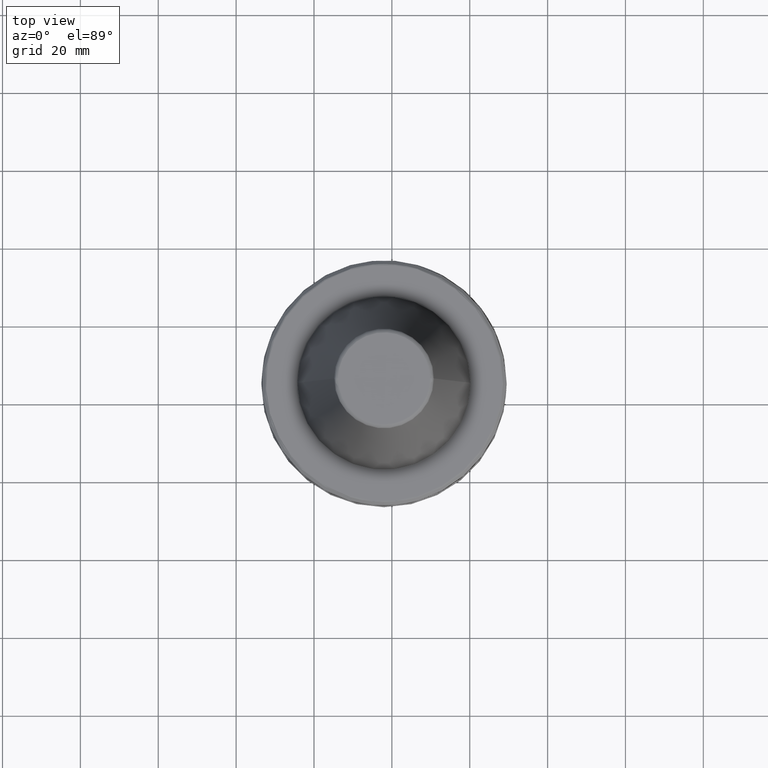
[diagram: clean part render]
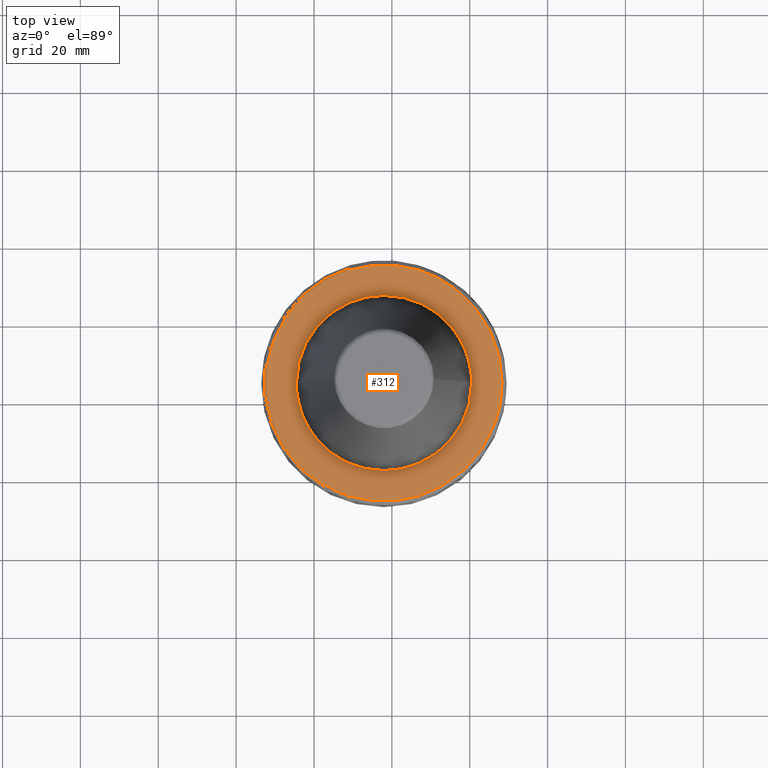
[diagram: same view with one face highlighted and labeled with its STEP entity id]
A machine part, top view. The second image highlights one B-rep face of the part: STEP entity #312.
In plain terms, the highlighted planar face has unit normal (0, 0, 1).
Its self-contained STEP definition (entity closure, byte-faithful):
#5 = CARTESIAN_POINT ( 'NONE',  ( 88.56968168236250000, 75.43021672979688200, 96.26703723820470800 ) ) ;
#19 = CARTESIAN_POINT ( 'NONE',  ( 95.13592640675780400, 78.85716974922742400, 96.26703723820473600 ) ) ;
#25 = CARTESIAN_POINT ( 'NONE',  ( 67.72618865411429600, 132.4356746161999200, 96.26703723820469300 ) ) ;
#32 = CARTESIAN_POINT ( 'NONE',  ( 104.2886711538334100, 88.76164756736309900, 96.26703723820470800 ) ) ;
#39 = CARTESIAN_POINT ( 'NONE',  ( 56.36187305375535300, 110.1072317639526400, 96.26703723820470800 ) ) ;
#40 = CARTESIAN_POINT ( 'NONE',  ( 62.15505559352561700, 129.7536590967682700, 96.26703723820470800 ) ) ;
#44 = CARTESIAN_POINT ( 'NONE',  ( 57.82575085714034900, 93.87540867960517200, 96.26703723820473600 ) ) ;
#49 = CARTESIAN_POINT ( 'NONE',  ( 107.1095510722242800, 95.36776672010709900, 96.26703723820467900 ) ) ;
#50 = CARTESIAN_POINT ( 'NONE',  ( 57.89542266774926600, 93.73565442440985900, 96.26703723820469300 ) ) ;
#51 = CARTESIAN_POINT ( 'NONE',  ( 58.03713271793208900, 93.45760030080515400, 96.26703723820467900 ) ) ;
#54 = CARTESIAN_POINT ( 'NONE',  ( 58.33001853415734000, 92.90730960073936700, 96.26703723820470800 ) ) ;
#55 = CARTESIAN_POINT ( 'NONE',  ( 57.80062400303728500, 126.5366545014419700, 96.26703723820470800 ) ) ;
#60 = CARTESIAN_POINT ( 'NONE',  ( 58.95365303004634000, 91.82999838918218000, 96.26703723820472200 ) ) ;
#66 = CARTESIAN_POINT ( 'NONE',  ( 59.55310464956004100, 90.94648053111780000, 96.26703723820469300 ) ) ;
#71 = CARTESIAN_POINT ( 'NONE',  ( 85.69293835335037100, 125.0470514378422800, 96.26703723820469300 ) ) ;
#72 = CARTESIAN_POINT ( 'NONE',  ( 59.98828199459987300, 90.36627200825982700, 96.26703723820470800 ) ) ;
#73 = CARTESIAN_POINT ( 'NONE',  ( 52.21348562819311900, 119.8813164292274100, 96.26703723820470800 ) ) ;
#81 = CARTESIAN_POINT ( 'NONE',  ( 59.99640069373337800, 90.35546431505410700, 96.26703723820466500 ) ) ;
#82 = CARTESIAN_POINT ( 'NONE',  ( 67.78827595413196100, 123.9387774322536000, 96.26703723820469300 ) ) ;
#86 = CARTESIAN_POINT ( 'NONE',  ( 92.63443209769768300, 120.9500140983358300, 96.26703723820469300 ) ) ;
#87 = CARTESIAN_POINT ( 'NONE',  ( 60.01123656388873700, 90.33575097836522600, 96.26703723820470800 ) ) ;
#88 = CARTESIAN_POINT ( 'NONE',  ( 49.83605282040564100, 115.1894462433105600, 96.26703723820472200 ) ) ;
#92 = CARTESIAN_POINT ( 'NONE',  ( 60.03351250406623100, 90.30620161481567700, 96.26703723820470800 ) ) ;
#104 = CARTESIAN_POINT ( 'NONE',  ( 95.97489191975388700, 117.3841245767763200, 96.26703723820472200 ) ) ;
#105 = CARTESIAN_POINT ( 'NONE',  ( 48.20935136042491800, 109.6923279370072400, 96.26703723820472200 ) ) ;
#113 = CARTESIAN_POINT ( 'NONE',  ( 99.24665109563893900, 111.2392120522614800, 96.26703723820472200 ) ) ;
#114 = CARTESIAN_POINT ( 'NONE',  ( 47.90222894728334800, 99.90200145991997300, 96.26703723820467900 ) ) ;
#126 = CARTESIAN_POINT ( 'NONE',  ( 100.2657431496110400, 106.9846240927630000, 96.26703723820472200 ) ) ;
#127 = CARTESIAN_POINT ( 'NONE',  ( 49.51002138626955000, 93.40840805033171500, 96.26703723820469300 ) ) ;
#136 = CARTESIAN_POINT ( 'NONE',  ( 107.9794422136030400, 108.3809265252981600, 96.26703723820469300 ) ) ;
#140 = CARTESIAN_POINT ( 'NONE',  ( 72.22135011107609200, 125.6256629103529300, 96.26703723820472200 ) ) ;
#141 = CARTESIAN_POINT ( 'NONE',  ( 51.82144942050587800, 88.51814591476670600, 96.26703723820470800 ) ) ;
#149 = CARTESIAN_POINT ( 'NONE',  ( 105.3034407769269200, 117.0571145251693000, 96.26703723820469300 ) ) ;
#152 = CARTESIAN_POINT ( 'NONE',  ( 55.53013797418361700, 83.46085799146062800, 96.26703723820473600 ) ) ;
#156 = CARTESIAN_POINT ( 'NONE',  ( 67.29751098528198800, 123.6767992786390400, 96.26703723820473600 ) ) ;
#161 = CARTESIAN_POINT ( 'NONE',  ( 98.44679067862955400, 126.2811992500874400, 96.26703723820470800 ) ) ;
#166 = CARTESIAN_POINT ( 'NONE',  ( 61.74980197331940000, 78.24874390211915900, 96.26703723820467900 ) ) ;
#167 = CARTESIAN_POINT ( 'NONE',  ( 77.98158695652918500, 81.37519830051486700, 96.26703723820469300 ) ) ;
#171 = CARTESIAN_POINT ( 'NONE',  ( 91.23498142190464900, 131.1611056599657000, 96.26703723820469300 ) ) ;
#174 = CARTESIAN_POINT ( 'NONE',  ( 65.65800161691933600, 76.15696862956269800, 96.26703723820469300 ) ) ;
#176 = CARTESIAN_POINT ( 'NONE',  ( 55.67248655717087000, 106.7999611923849700, 96.26703723820470800 ) ) ;
#189 = CARTESIAN_POINT ( 'NONE',  ( 99.71573488297677600, 98.05176217742050000, 96.26703723820470800 ) ) ;
#202 = CARTESIAN_POINT ( 'NONE',  ( 98.22376051188629700, 94.05152886807680100, 96.26703723820467900 ) ) ;
#210 = CARTESIAN_POINT ( 'NONE',  ( 72.00038850188450100, 125.5659475191162400, 96.26703723820469300 ) ) ;
#212 = CARTESIAN_POINT ( 'NONE',  ( 56.24743903007957600, 109.6986344066380900, 96.26703723820469300 ) ) ;
#213 = CARTESIAN_POINT ( 'NONE',  ( 95.39350613533039800, 89.61565477396413800, 96.26703723820466500 ) ) ;
#227 = CARTESIAN_POINT ( 'NONE',  ( 92.46012068132736800, 86.64736015971506300, 96.26703723820472200 ) ) ;
#231 = CARTESIAN_POINT ( 'NONE',  ( 57.51760263947084400, 113.2304619245390700, 96.26703723820472200 ) ) ;
#240 = CARTESIAN_POINT ( 'NONE',  ( 88.61918778900657400, 84.04858685698198400, 96.26703723820466500 ) ) ;
#251 = CARTESIAN_POINT ( 'NONE',  ( 83.63270506351852900, 82.09612005852899600, 96.26703723820466500 ) ) ;
#263 = ORIENTED_EDGE ( 'NONE', *, *, #697, .T. ) ;
#291 = CARTESIAN_POINT ( 'NONE',  ( 87.47320346012206500, 75.05368259486556300, 96.26703723820469300 ) ) ;
#292 = CARTESIAN_POINT ( 'NONE',  ( 76.11005151862362100, 126.3168325373449600, 96.26703723820472200 ) ) ;
#301 = CIRCLE ( 'NONE', #3301, 30.33431457761490100 ) ;
#302 = CARTESIAN_POINT ( 'NONE',  ( 90.43968229268386900, 76.21596341478172600, 96.26703723820470800 ) ) ;
#305 = CARTESIAN_POINT ( 'NONE',  ( 63.75828883721125400, 86.43867991175767400, 96.26703723820470800 ) ) ;
#312 = ADVANCED_FACE ( 'NONE', ( #1090, #1098 ), #445, .T. ) ;
#317 = CARTESIAN_POINT ( 'NONE',  ( 95.89828516855567400, 79.38345784798202900, 96.26703723820470800 ) ) ;
#323 = CARTESIAN_POINT ( 'NONE',  ( 66.18412370897606000, 131.8221958720828600, 96.26703723820470800 ) ) ;
#331 = CARTESIAN_POINT ( 'NONE',  ( 104.7884889286547300, 89.67758749116933400, 96.26703723820466500 ) ) ;
#332 = CARTESIAN_POINT ( 'NONE',  ( 55.48158695295079900, 104.3751129460237200, 96.26703723820467900 ) ) ;
#339 = CARTESIAN_POINT ( 'NONE',  ( 55.89974189009515700, 108.2575908254424500, 96.26703723820465100 ) ) ;
#340 = CARTESIAN_POINT ( 'NONE',  ( 62.06327585375473200, 129.6972516175349000, 96.26703723820473600 ) ) ;
#344 = CARTESIAN_POINT ( 'NONE',  ( 55.57907036004595400, 105.9935873818559600, 96.26703723820470800 ) ) ;
#348 = CARTESIAN_POINT ( 'NONE',  ( 107.7249420859562900, 97.89274790902595700, 96.26703723820472200 ) ) ;
#354 = CARTESIAN_POINT ( 'NONE',  ( 55.94219241495531500, 124.7251655826609800, 96.26703723820470800 ) ) ;
#369 = CARTESIAN_POINT ( 'NONE',  ( 87.86350454918013500, 124.0913625488728500, 96.26703723820470800 ) ) ;
#371 = CARTESIAN_POINT ( 'NONE',  ( 52.07442743782989000, 119.6546948288369500, 96.26703723820470800 ) ) ;
#378 = CARTESIAN_POINT ( 'NONE',  ( 72.67045175536014800, 82.01094048626581000, 96.26703723820472200 ) ) ;
#382 = CARTESIAN_POINT ( 'NONE',  ( 92.73570954449034800, 120.8624451687658900, 96.26703723820473600 ) ) ;
#384 = CARTESIAN_POINT ( 'NONE',  ( 49.71251493672827600, 114.8771605628305000, 96.26703723820470800 ) ) ;
#394 = CIRCLE ( 'NONE', #3392, 30.33431457761490100 ) ;
#397 = CARTESIAN_POINT ( 'NONE',  ( 97.00952088422619100, 115.9203981956911100, 96.26703723820470800 ) ) ;
#398 = CARTESIAN_POINT ( 'NONE',  ( 48.00476754819075600, 108.5421503697176200, 96.26703723820469300 ) ) ;
#407 = CARTESIAN_POINT ( 'NONE',  ( 99.50198972577375400, 110.4428149520553000, 96.26703723820470800 ) ) ;
#408 = CARTESIAN_POINT ( 'NONE',  ( 56.56024903717960200, 110.7878058697814500, 96.26703723820467900 ) ) ;
#409 = CARTESIAN_POINT ( 'NONE',  ( 48.08281721794212200, 98.74793598137391400, 96.26703723820470800 ) ) ;
#417 = CARTESIAN_POINT ( 'NONE',  ( 100.2777532654599400, 106.8969942971174000, 96.26703723820470800 ) ) ;
#418 = CARTESIAN_POINT ( 'NONE',  ( 49.63101531672255400, 93.08500520252731300, 96.26703723820470800 ) ) ;
#424 = CARTESIAN_POINT ( 'NONE',  ( 55.50647633348572900, 105.1233896445498600, 96.26703723820470800 ) ) ;
#427 = CARTESIAN_POINT ( 'NONE',  ( 107.8433021807362700, 109.2689559059114000, 96.26703723820469300 ) ) ;
#430 = CARTESIAN_POINT ( 'NONE',  ( 51.96235777882295500, 88.28118310702267000, 96.26703723820472200 ) ) ;
#441 = CARTESIAN_POINT ( 'NONE',  ( 105.0748529431744300, 117.5183720140175400, 96.26703723820470800 ) ) ;
#445 = PLANE ( 'NONE',  #2622 ) ;
#446 = CARTESIAN_POINT ( 'NONE',  ( 57.36075749385279500, 81.62126775525383900, 96.26703723820469300 ) ) ;
#452 = CARTESIAN_POINT ( 'NONE',  ( 96.38971054936382600, 127.9919024810600900, 96.26703723820467900 ) ) ;
#455 = CARTESIAN_POINT ( 'NONE',  ( 61.94734702036082300, 78.12496950437132200, 96.26703723820465100 ) ) ;
#463 = CARTESIAN_POINT ( 'NONE',  ( 91.09739654119627500, 131.2275011679502400, 96.26703723820469300 ) ) ;
#465 = CARTESIAN_POINT ( 'NONE',  ( 68.01872251109479400, 75.19564950613812500, 96.26703723820470800 ) ) ;
#468 = CARTESIAN_POINT ( 'NONE',  ( 100.4566975795726500, 102.6270069394949000, 96.26703723820473600 ) ) ;
#480 = CARTESIAN_POINT ( 'NONE',  ( 99.61597935679651500, 97.69416188874770100, 96.26703723820470800 ) ) ;
#482 = CARTESIAN_POINT ( 'NONE',  ( 67.34398612405206600, 123.7018097270821400, 96.26703723820470800 ) ) ;
#492 = CARTESIAN_POINT ( 'NONE',  ( 98.21119531858302300, 94.02567754469599500, 96.26703723820470800 ) ) ;
#503 = CARTESIAN_POINT ( 'NONE',  ( 94.73301061510082400, 88.85334882095739300, 96.26703723820472200 ) ) ;
#516 = CARTESIAN_POINT ( 'NONE',  ( 91.39046610615527300, 85.80507198340332300, 96.26703723820470800 ) ) ;
#528 = CARTESIAN_POINT ( 'NONE',  ( 87.57404325158481100, 83.51379606457679500, 96.26703723820466500 ) ) ;
#536 = CARTESIAN_POINT ( 'NONE',  ( 72.33046884954794100, 125.6542765255367300, 96.26703723820472200 ) ) ;
#538 = CARTESIAN_POINT ( 'NONE',  ( 82.38933938250968900, 81.80255613137417500, 96.26703723820470800 ) ) ;
#600 = CARTESIAN_POINT ( 'NONE',  ( 90.87873294351609800, 76.41911311901230900, 96.26703723820467900 ) ) ;
#601 = CARTESIAN_POINT ( 'NONE',  ( 57.28939554530502700, 112.7219423670006400, 96.26703723820470800 ) ) ;
#614 = CARTESIAN_POINT ( 'NONE',  ( 97.98198323180345400, 81.06163739130927600, 96.26703723820465100 ) ) ;
#617 = CARTESIAN_POINT ( 'NONE',  ( 65.80281568037951000, 131.6574018665125700, 96.26703723820467900 ) ) ;
#621 = CARTESIAN_POINT ( 'NONE',  ( 55.67835504591986500, 106.8443970352715700, 96.26703723820469300 ) ) ;
#625 = CARTESIAN_POINT ( 'NONE',  ( 104.9344252854149200, 89.95666220171789000, 96.26703723820467900 ) ) ;
#630 = CARTESIAN_POINT ( 'NONE',  ( 57.72635495974096600, 113.6719444609917200, 96.26703723820467900 ) ) ;
#631 = CARTESIAN_POINT ( 'NONE',  ( 61.39217308422916400, 129.2822685624604700, 96.26703723820472200 ) ) ;
#639 = CARTESIAN_POINT ( 'NONE',  ( 107.9099969890929700, 98.92759428951221400, 96.26703723820467900 ) ) ;
#645 = CARTESIAN_POINT ( 'NONE',  ( 55.23731182480138100, 123.9472286476797200, 96.26703723820466500 ) ) ;
#655 = CARTESIAN_POINT ( 'NONE',  ( 88.39404927873879100, 123.8210386798545100, 96.26703723820470800 ) ) ;
#656 = CARTESIAN_POINT ( 'NONE',  ( 51.79123441209530700, 119.1863358216124700, 96.26703723820470800 ) ) ;
#664 = CARTESIAN_POINT ( 'NONE',  ( 93.37079723336198400, 120.3082756315999500, 96.26703723820469300 ) ) ;
#665 = CARTESIAN_POINT ( 'NONE',  ( 49.27519492723400400, 113.6976795755169600, 96.26703723820472200 ) ) ;
#670 = CARTESIAN_POINT ( 'NONE',  ( 71.66975978501629600, 125.4738867343488400, 96.26703723820470800 ) ) ;
#679 = CARTESIAN_POINT ( 'NONE',  ( 97.92604119624900200, 114.2927962838640800, 96.26703723820469300 ) ) ;
#681 = CARTESIAN_POINT ( 'NONE',  ( 47.82138955648623100, 107.1543755559661700, 96.26703723820467900 ) ) ;
#683 = CARTESIAN_POINT ( 'NONE',  ( 67.20198088888513200, 123.6249577333523000, 96.26703723820470800 ) ) ;
#685 = DIRECTION ( 'NONE',  ( -0.0000000000000000000, -0.0000000000000000000, -1.000000000000000000 ) ) ;
#688 = DIRECTION ( 'NONE',  ( 1.000000000000000000, 0.0000000000000000000, 0.0000000000000000000 ) ) ;
#691 = CARTESIAN_POINT ( 'NONE',  ( 99.56194619579993300, 110.2422032836919200, 96.26703723820467900 ) ) ;
#692 = CARTESIAN_POINT ( 'NONE',  ( 48.25165510459838500, 97.83226131061009300, 96.26703723820470800 ) ) ;
#697 = EDGE_CURVE ( 'NONE', #1642, #1475, #2751, .T. ) ;
#704 = CARTESIAN_POINT ( 'NONE',  ( 100.4152152782657800, 105.8709441547751600, 96.26703723820470800 ) ) ;
#705 = CARTESIAN_POINT ( 'NONE',  ( 50.08932009628384900, 91.93587377311540400, 96.26703723820469300 ) ) ;
#708 = CARTESIAN_POINT ( 'NONE',  ( 107.2665030626502900, 111.8030314524517900, 96.26703723820469300 ) ) ;
#713 = CARTESIAN_POINT ( 'NONE',  ( 52.45937296720775600, 87.45837021898076100, 96.26703723820470800 ) ) ;
#725 = CARTESIAN_POINT ( 'NONE',  ( 104.2193134424833100, 119.1902096544698400, 96.26703723820467900 ) ) ;
#728 = CARTESIAN_POINT ( 'NONE',  ( 69.10494728768648500, 124.5523265451779600, 96.26703723820469300 ) ) ;
#729 = CARTESIAN_POINT ( 'NONE',  ( 58.14594543153209800, 80.92447337422760300, 96.26703723820466500 ) ) ;
#735 = CARTESIAN_POINT ( 'NONE',  ( 95.51501803514375400, 128.6293578664423500, 96.26703723820467900 ) ) ;
#741 = CARTESIAN_POINT ( 'NONE',  ( 62.00828999140521300, 78.08712225758705500, 96.26703723820467900 ) ) ;
#742 = CARTESIAN_POINT ( 'NONE',  ( 67.56912463544937000, 83.92935790637487500, 96.26703723820470800 ) ) ;
#748 = CARTESIAN_POINT ( 'NONE',  ( 88.21515324868759900, 132.4731961514052300, 96.26703723820470800 ) ) ;
#754 = CARTESIAN_POINT ( 'NONE',  ( 100.3369174357482500, 101.3224082696235200, 96.26703723820472200 ) ) ;
#765 = CARTESIAN_POINT ( 'NONE',  ( 99.59147446020779200, 97.60917522072256200, 96.26703723820466500 ) ) ;
#781 = CARTESIAN_POINT ( 'NONE',  ( 97.38061930925040600, 92.43725212870946000, 96.26703723820473600 ) ) ;
#794 = CARTESIAN_POINT ( 'NONE',  ( 94.57134392359063200, 88.67545467190426200, 96.26703723820472200 ) ) ;
#802 = CARTESIAN_POINT ( 'NONE',  ( 58.58255460379195500, 115.3131444553262800, 96.26703723820469300 ) ) ;
#808 = CARTESIAN_POINT ( 'NONE',  ( 90.96493576968470100, 85.49898127498364900, 96.26703723820469300 ) ) ;
#819 = CARTESIAN_POINT ( 'NONE',  ( 86.49661344534834500, 83.04814058672504000, 96.26703723820469300 ) ) ;
#828 = CARTESIAN_POINT ( 'NONE',  ( 57.74813137044290600, 113.7168118287370400, 96.26703723820466500 ) ) ;
#834 = CARTESIAN_POINT ( 'NONE',  ( 81.24412824002604300, 81.61177454579495800, 96.26703723820470800 ) ) ;
#843 = CARTESIAN_POINT ( 'NONE',  ( 59.79563046017036500, 117.1241726843966400, 96.26703723820467900 ) ) ;
#882 = CARTESIAN_POINT ( 'NONE',  ( 56.12241554524166500, 109.2201785331709200, 96.26703723820473600 ) ) ;
#897 = CARTESIAN_POINT ( 'NONE',  ( 91.00833735309841200, 76.48036500217190800, 96.26703723820467900 ) ) ;
#911 = CARTESIAN_POINT ( 'NONE',  ( 98.74215603167915800, 81.75777045825535100, 96.26703723820467900 ) ) ;
#916 = CARTESIAN_POINT ( 'NONE',  ( 65.71227520322865700, 131.6174942464195400, 96.26703723820469300 ) ) ;
#923 = CARTESIAN_POINT ( 'NONE',  ( 105.8741923432916700, 91.90153856043176000, 96.26703723820469300 ) ) ;
#925 = CARTESIAN_POINT ( 'NONE',  ( 62.15131051999364300, 119.8732242880268000, 96.26703723820472200 ) ) ;
#930 = CARTESIAN_POINT ( 'NONE',  ( 59.42453194320954400, 127.8763096006000700, 96.26703723820470800 ) ) ;
#940 = CARTESIAN_POINT ( 'NONE',  ( 107.9495983908026200, 99.17505019270524300, 96.26703723820469300 ) ) ;
#945 = CARTESIAN_POINT ( 'NONE',  ( 81.92347384294762900, 126.0362559800175600, 96.26703723820470800 ) ) ;
#946 = CARTESIAN_POINT ( 'NONE',  ( 55.07271143621117200, 123.7587253080500000, 96.26703723820469300 ) ) ;
#960 = CARTESIAN_POINT ( 'NONE',  ( 88.51965900431979200, 123.7548316301982000, 96.26703723820470800 ) ) ;
#961 = CARTESIAN_POINT ( 'NONE',  ( 51.09940863894495800, 117.9323839472159500, 96.26703723820470800 ) ) ;
#975 = CARTESIAN_POINT ( 'NONE',  ( 95.12598708946880800, 118.4560266846285700, 96.26703723820470800 ) ) ;
#976 = CARTESIAN_POINT ( 'NONE',  ( 48.93098348580878800, 112.6071039195697000, 96.26703723820469300 ) ) ;
#988 = CARTESIAN_POINT ( 'NONE',  ( 98.13742305701715900, 113.8749879050093800, 96.26703723820467900 ) ) ;
#989 = CARTESIAN_POINT ( 'NONE',  ( 47.64728940744274900, 104.8141028301585200, 96.26703723820467900 ) ) ;
#998 = CARTESIAN_POINT ( 'NONE',  ( 64.99823814337216300, 122.2514153090782500, 96.26703723820472200 ) ) ;
#1000 = CARTESIAN_POINT ( 'NONE',  ( 59.92814568014874500, 117.3036655750624400, 96.26703723820470800 ) ) ;
#1003 = CARTESIAN_POINT ( 'NONE',  ( 99.57599377923828900, 110.1943497776490400, 96.26703723820470800 ) ) ;
#1004 = CARTESIAN_POINT ( 'NONE',  ( 48.58991257804361700, 96.36557318181670000, 96.26703723820469300 ) ) ;
#1008 = CARTESIAN_POINT ( 'NONE',  ( 61.32702042031711200, 119.0039012450189500, 96.26703723820470800 ) ) ;
#1013 = CARTESIAN_POINT ( 'NONE',  ( 100.4815869619365900, 103.8751982925319900, 96.26703723820469300 ) ) ;
#1015 = CARTESIAN_POINT ( 'NONE',  ( 50.58009481892696600, 90.86170622787381000, 96.26703723820469300 ) ) ;
#1021 = CARTESIAN_POINT ( 'NONE',  ( 77.98158695652919900, 126.3751982961103800, 96.26703723820469300 ) ) ;
#1023 = CARTESIAN_POINT ( 'NONE',  ( 106.9700140607073800, 112.8116178751498400, 96.26703723820472200 ) ) ;
#1026 = CARTESIAN_POINT ( 'NONE',  ( 54.05974236686608200, 85.21403591898023000, 96.26703723820467900 ) ) ;
#1036 = CARTESIAN_POINT ( 'NONE',  ( 101.8449488114377500, 122.6211658790684900, 96.26703723820470800 ) ) ;
#1040 = CARTESIAN_POINT ( 'NONE',  ( 58.33614161432836900, 80.76183202825674800, 96.26703723820470800 ) ) ;
#1048 = CARTESIAN_POINT ( 'NONE',  ( 95.30367008270312100, 128.7773806850116800, 96.26703723820472200 ) ) ;
#1053 = CARTESIAN_POINT ( 'NONE',  ( 63.50863209173468200, 77.20050817602722800, 96.26703723820469300 ) ) ;
#1055 = CARTESIAN_POINT ( 'NONE',  ( 100.4815869619365900, 103.8751982925319900, 96.26703723820469300 ) ) ;
#1069 = CARTESIAN_POINT ( 'NONE',  ( 57.79121075545646800, 93.94546760555105900, 96.26703723820470800 ) ) ;
#1070 = CARTESIAN_POINT ( 'NONE',  ( 100.2967638648071000, 100.9969129172311300, 96.26703723820467900 ) ) ;
#1081 = CARTESIAN_POINT ( 'NONE',  ( 99.40292487587865400, 96.96259071427999700, 96.26703723820469300 ) ) ;
#1090 = FACE_OUTER_BOUND ( 'NONE', #1237, .T. ) ;
#1095 = CARTESIAN_POINT ( 'NONE',  ( 96.35033496073089100, 90.87917268682635100, 96.26703723820469300 ) ) ;
#1098 = FACE_BOUND ( 'NONE', #2317, .T. ) ;
#1105 = CARTESIAN_POINT ( 'NONE',  ( 94.23300282138585300, 88.30908430541727200, 96.26703723820470800 ) ) ;
#1106 = EDGE_CURVE ( 'NONE', #2062, #1642, #2760, .T. ) ;
#1120 = CARTESIAN_POINT ( 'NONE',  ( 90.83763411663488800, 85.40969129843031700, 96.26703723820470800 ) ) ;
#1131 = CARTESIAN_POINT ( 'NONE',  ( 86.23681872777324000, 82.94425932403173400, 96.26703723820465100 ) ) ;
#1143 = CARTESIAN_POINT ( 'NONE',  ( 79.85312239438859200, 81.43356404671902700, 96.26703723820470800 ) ) ;
#1150 = CARTESIAN_POINT ( 'NONE',  ( 55.66641004825122300, 106.7534836668304800, 96.26703723820470800 ) ) ;
#1190 = CARTESIAN_POINT ( 'NONE',  ( 55.67656997116490200, 106.8309441322306400, 96.26703723820472200 ) ) ;
#1201 = CARTESIAN_POINT ( 'NONE',  ( 56.01667965423781900, 98.94000858264726600, 96.26703723820469300 ) ) ;
#1203 = CARTESIAN_POINT ( 'NONE',  ( 72.49818499630485700, 82.05352401718192800, 96.26703723820467900 ) ) ;
#1209 = CARTESIAN_POINT ( 'NONE',  ( 92.84488420543282000, 77.41028019083633200, 96.26703723820470800 ) ) ;
#1215 = CARTESIAN_POINT ( 'NONE',  ( 68.62532364223362400, 132.7374901351770100, 96.26703723820472200 ) ) ;
#1224 = VERTEX_POINT ( 'NONE', #3638 ) ;
#1225 = CARTESIAN_POINT ( 'NONE',  ( 98.96585608446694900, 81.96990419119828200, 96.26703723820469300 ) ) ;
#1228 = CARTESIAN_POINT ( 'NONE',  ( 65.04610140258918700, 131.3218671609112400, 96.26703723820470800 ) ) ;
#1234 = CARTESIAN_POINT ( 'NONE',  ( 106.6371567345033600, 93.92005155042697600, 96.26703723820467900 ) ) ;
#1237 = EDGE_LOOP ( 'NONE', ( #1920, #1805, #3769, #1695, #3761 ) ) ;
#1238 = CARTESIAN_POINT ( 'NONE',  ( 60.21224672195470600, 117.6827594602781800, 96.26703723820467900 ) ) ;
#1241 = CARTESIAN_POINT ( 'NONE',  ( 58.66291706894970300, 127.2626949893094800, 96.26703723820469300 ) ) ;
#1245 = CARTESIAN_POINT ( 'NONE',  ( 108.1989119390254800, 100.7987376277232100, 96.26703723820470800 ) ) ;
#1250 = CARTESIAN_POINT ( 'NONE',  ( 83.12208045390229900, 125.7806970860990400, 96.26703723820469300 ) ) ;
#1251 = CARTESIAN_POINT ( 'NONE',  ( 55.02456984857214900, 123.7031251937238900, 96.26703723820467900 ) ) ;
#1266 = CARTESIAN_POINT ( 'NONE',  ( 89.32598054880521900, 123.3248773845231300, 96.26703723820469300 ) ) ;
#1267 = CARTESIAN_POINT ( 'NONE',  ( 50.84950419068949400, 117.4410658709268200, 96.26703723820470800 ) ) ;
#1278 = CARTESIAN_POINT ( 'NONE',  ( 95.77264521678318900, 117.6500290823906500, 96.26703723820472200 ) ) ;
#1280 = CARTESIAN_POINT ( 'NONE',  ( 48.83439852791207900, 112.2790870706483900, 96.26703723820469300 ) ) ;
#1292 = CARTESIAN_POINT ( 'NONE',  ( 98.18670267292688400, 113.7748647682845200, 96.26703723820469300 ) ) ;
#1293 = CARTESIAN_POINT ( 'NONE',  ( 47.66358177184061900, 102.7021884646779500, 96.26703723820472200 ) ) ;
#1302 = CARTESIAN_POINT ( 'NONE',  ( 108.3159015284381800, 104.6464144190465500, 96.26703723820469300 ) ) ;
#1304 = CARTESIAN_POINT ( 'NONE',  ( 99.74004220476888300, 109.6319691503480600, 96.26703723820472200 ) ) ;
#1305 = CARTESIAN_POINT ( 'NONE',  ( 48.73997824874831500, 95.80598078460805300, 96.26703723820472200 ) ) ;
#1312 = CARTESIAN_POINT ( 'NONE',  ( 62.92314957028109700, 120.5937864411263800, 96.26703723820467900 ) ) ;
#1313 = CARTESIAN_POINT ( 'NONE',  ( 108.2720304327177600, 105.7999571355546400, 96.26703723820470800 ) ) ;
#1317 = CARTESIAN_POINT ( 'NONE',  ( 50.70227090783713200, 90.60822288239734200, 96.26703723820467900 ) ) ;
#1326 = CARTESIAN_POINT ( 'NONE',  ( 106.8949563548334000, 113.0507183372299100, 96.26703723820467900 ) ) ;
#1331 = CARTESIAN_POINT ( 'NONE',  ( 54.76559031969223000, 84.35064062060163800, 96.26703723820467900 ) ) ;
#1340 = CARTESIAN_POINT ( 'NONE',  ( 100.0724677195443500, 124.6712444386478900, 96.26703723820472200 ) ) ;
#1341 = CARTESIAN_POINT ( 'NONE',  ( 57.76665898429060800, 93.99558328055809400, 96.26703723820470800 ) ) ;
#1344 = CARTESIAN_POINT ( 'NONE',  ( 58.39474441010304400, 80.71215103759125500, 96.26703723820465100 ) ) ;
#1353 = CARTESIAN_POINT ( 'NONE',  ( 94.55675160464836900, 129.2933557084694800, 96.26703723820469300 ) ) ;
#1357 = CARTESIAN_POINT ( 'NONE',  ( 65.12698722921454900, 76.39825255065373700, 96.26703723820469300 ) ) ;
#1359 = CARTESIAN_POINT ( 'NONE',  ( 63.32874181669137700, 86.80038248727457500, 96.26703723820467900 ) ) ;
#1371 = CARTESIAN_POINT ( 'NONE',  ( 100.2866039418934700, 100.9194524518327100, 96.26703723820472200 ) ) ;
#1378 = CARTESIAN_POINT ( 'NONE',  ( 69.62233144491382600, 124.7648114281169400, 96.26703723820470800 ) ) ;
#1381 = CARTESIAN_POINT ( 'NONE',  ( 62.59237668104621100, 87.44212095387642600, 96.26703723820470800 ) ) ;
#1382 = CARTESIAN_POINT ( 'NONE',  ( 98.67377836775317200, 95.02845421705998800, 96.26703723820469300 ) ) ;
#1392 = CARTESIAN_POINT ( 'NONE',  ( 61.74567445176800400, 88.26286089323188800, 96.26703723820467900 ) ) ;
#1393 = CARTESIAN_POINT ( 'NONE',  ( 96.07496082934379400, 90.50047069748656300, 96.26703723820470800 ) ) ;
#1407 = CARTESIAN_POINT ( 'NONE',  ( 93.30062260247339600, 87.39343715937836500, 96.26703723820470800 ) ) ;
#1421 = CARTESIAN_POINT ( 'NONE',  ( 89.88985117512598300, 84.77611444813622700, 96.26703723820469300 ) ) ;
#1424 = CARTESIAN_POINT ( 'NONE',  ( 67.05899632333866100, 123.5466940635977300, 96.26703723820467900 ) ) ;
#1437 = CARTESIAN_POINT ( 'NONE',  ( 85.70579614481432900, 82.73763236484698800, 96.26703723820473600 ) ) ;
#1455 = CARTESIAN_POINT ( 'NONE',  ( 77.98158695652918500, 81.37519830051486700, 96.26703723820469300 ) ) ;
#1465 = CARTESIAN_POINT ( 'NONE',  ( 67.44351490987750700, 83.99556495601467500, 96.26703723820469300 ) ) ;
#1475 = VERTEX_POINT ( 'NONE', #1861 ) ;
#1477 = CARTESIAN_POINT ( 'NONE',  ( 56.34719455626130000, 110.0562346953147700, 96.26703723820470800 ) ) ;
#1510 = CARTESIAN_POINT ( 'NONE',  ( 86.73158695428601600, 132.9201314290346300, 96.26703723820469300 ) ) ;
#1516 = CARTESIAN_POINT ( 'NONE',  ( 66.72753972373861600, 123.3605693713985700, 96.26703723820469300 ) ) ;
#1529 = CARTESIAN_POINT ( 'NONE',  ( 55.69743076386308200, 100.7657724913642700, 96.26703723820466500 ) ) ;
#1531 = CARTESIAN_POINT ( 'NONE',  ( 67.41698161197544400, 84.00965518013882200, 96.26703723820470800 ) ) ;
#1535 = CARTESIAN_POINT ( 'NONE',  ( 94.63575498131436300, 78.52008775362473600, 96.26703723820469300 ) ) ;
#1537 = CARTESIAN_POINT ( 'NONE',  ( 74.03970007064522500, 81.71414060695434500, 96.26703723820469300 ) ) ;
#1538 = CARTESIAN_POINT ( 'NONE',  ( 72.55674660109274000, 82.03888519776191400, 96.26703723820467900 ) ) ;
#1552 = CARTESIAN_POINT ( 'NONE',  ( 101.3471373330220800, 84.45831188404376600, 96.26703723820467900 ) ) ;
#1557 = CARTESIAN_POINT ( 'NONE',  ( 63.06250702035115600, 130.2911415066478800, 96.26703723820469300 ) ) ;
#1568 = CARTESIAN_POINT ( 'NONE',  ( 55.68277611347321700, 100.8729885685369400, 96.26703723820470800 ) ) ;
#1569 = CARTESIAN_POINT ( 'NONE',  ( 106.8008206624136700, 94.40814431994446900, 96.26703723820473600 ) ) ;
#1571 = CARTESIAN_POINT ( 'NONE',  ( 58.06978034585662100, 114.3766570955321100, 96.26703723820470800 ) ) ;
#1575 = DIRECTION ( 'NONE',  ( -0.0000000000000000000, -0.0000000000000000000, -1.000000000000000000 ) ) ;
#1576 = CARTESIAN_POINT ( 'NONE',  ( 58.48391510761995700, 127.1133549597386600, 96.26703723820470800 ) ) ;
#1587 = CARTESIAN_POINT ( 'NONE',  ( 108.3159015258722800, 103.8751982925319900, 96.26703723820469300 ) ) ;
#1593 = CARTESIAN_POINT ( 'NONE',  ( 83.40642731265214100, 125.7115113890595700, 96.26703723820473600 ) ) ;
#1595 = CARTESIAN_POINT ( 'NONE',  ( 53.66127948094254700, 122.0402201824449700, 96.26703723820472200 ) ) ;
#1610 = CARTESIAN_POINT ( 'NONE',  ( 91.62160717307539000, 121.7786323601844300, 96.26703723820470800 ) ) ;
#1611 = CARTESIAN_POINT ( 'NONE',  ( 50.55341141819310000, 116.8393345544241800, 96.26703723820467900 ) ) ;
#1622 = CARTESIAN_POINT ( 'NONE',  ( 95.92966141029040700, 117.4441949702274000, 96.26703723820467900 ) ) ;
#1624 = CARTESIAN_POINT ( 'NONE',  ( 48.50144246065618600, 111.0493623066181800, 96.26703723820472200 ) ) ;
#1626 = CARTESIAN_POINT ( 'NONE',  ( 65.54428898399503100, 85.09057656013146700, 96.26703723820466500 ) ) ;
#1639 = CARTESIAN_POINT ( 'NONE',  ( 98.20193664807807500, 113.7437112372100200, 96.26703723820470800 ) ) ;
#1641 = CARTESIAN_POINT ( 'NONE',  ( 47.73704849552597600, 101.5313515952467300, 96.26703723820465100 ) ) ;
#1642 = VERTEX_POINT ( 'NONE', #3820 ) ;
#1651 = CARTESIAN_POINT ( 'NONE',  ( 100.1327010629100600, 107.8400861495163400, 96.26703723820472200 ) ) ;
#1653 = CARTESIAN_POINT ( 'NONE',  ( 48.92781039089545900, 95.14258097553710100, 96.26703723820467900 ) ) ;
#1660 = CARTESIAN_POINT ( 'NONE',  ( 108.0609007845631300, 107.8086073752764800, 96.26703723820472200 ) ) ;
#1662 = CARTESIAN_POINT ( 'NONE',  ( 50.94604809958956100, 90.11129086325344400, 96.26703723820473600 ) ) ;
#1671 = CARTESIAN_POINT ( 'NONE',  ( 61.23016329794904100, 118.8970477630968900, 96.26703723820469300 ) ) ;
#1674 = CARTESIAN_POINT ( 'NONE',  ( 106.6125564736291800, 113.9309592375375400, 96.26703723820470800 ) ) ;
#1678 = CARTESIAN_POINT ( 'NONE',  ( 62.66255131059153900, 120.3569594246936400, 96.26703723820469300 ) ) ;
#1679 = CARTESIAN_POINT ( 'NONE',  ( 54.93786125067993000, 84.14810981676684800, 96.26703723820469300 ) ) ;
#1689 = CARTESIAN_POINT ( 'NONE',  ( 99.34025447594206100, 125.4156134946587700, 96.26703723820469300 ) ) ;
#1694 = CARTESIAN_POINT ( 'NONE',  ( 59.86174167890038700, 79.52729768351220200, 96.26703723820470800 ) ) ;
#1695 = ORIENTED_EDGE ( 'NONE', *, *, #2414, .T. ) ;
#1702 = CARTESIAN_POINT ( 'NONE',  ( 92.31072036529597800, 130.6172006175117100, 96.26703723820470800 ) ) ;
#1705 = CARTESIAN_POINT ( 'NONE',  ( 71.56217219707106400, 82.29121757189534500, 96.26703723820466500 ) ) ;
#1706 = CARTESIAN_POINT ( 'NONE',  ( 65.53835985171245700, 76.21042050750210700, 96.26703723820466500 ) ) ;
#1724 = CARTESIAN_POINT ( 'NONE',  ( 70.25737776823240200, 125.0127642192127600, 96.26703723820469300 ) ) ;
#1726 = CARTESIAN_POINT ( 'NONE',  ( 100.2073694738929400, 100.3276111551714400, 96.26703723820467900 ) ) ;
#1740 = CARTESIAN_POINT ( 'NONE',  ( 98.32732093204742800, 94.26726211567739700, 96.26703723820470800 ) ) ;
#1753 = CARTESIAN_POINT ( 'NONE',  ( 96.00834998435078700, 90.41093889245621500, 96.26703723820469300 ) ) ;
#1766 = CARTESIAN_POINT ( 'NONE',  ( 92.92727268911464500, 87.05619296844797400, 96.26703723820469300 ) ) ;
#1783 = CARTESIAN_POINT ( 'NONE',  ( 63.50305323172768400, 121.1030364243442700, 96.26703723820470800 ) ) ;
#1784 = CARTESIAN_POINT ( 'NONE',  ( 88.90417758970771400, 84.20370252045989900, 96.26703723820469300 ) ) ;
#1795 = CARTESIAN_POINT ( 'NONE',  ( 84.29341412802676800, 82.27650984970958300, 96.26703723820470800 ) ) ;
#1805 = ORIENTED_EDGE ( 'NONE', *, *, #3036, .T. ) ;
#1854 = CARTESIAN_POINT ( 'NONE',  ( 69.77730178285322900, 124.8261629327694400, 96.26703723820472200 ) ) ;
#1861 = CARTESIAN_POINT ( 'NONE',  ( 77.98158695652919900, 126.3751982961103800, 96.26703723820469300 ) ) ;
#1863 = CARTESIAN_POINT ( 'NONE',  ( 95.05288583955500300, 78.80043102227008900, 96.26703723820469300 ) ) ;
#1870 = CARTESIAN_POINT ( 'NONE',  ( 56.86615571263077100, 111.6922053725424600, 96.26703723820472200 ) ) ;
#1877 = CARTESIAN_POINT ( 'NONE',  ( 103.5448187542727000, 87.50688250601550100, 96.26703723820466500 ) ) ;
#1881 = CARTESIAN_POINT ( 'NONE',  ( 62.28379986298998000, 129.8321466640357200, 96.26703723820470800 ) ) ;
#1887 = CARTESIAN_POINT ( 'NONE',  ( 106.8491061335986200, 94.55643035201977400, 96.26703723820470800 ) ) ;
#1892 = CARTESIAN_POINT ( 'NONE',  ( 77.98158695652919900, 126.3751982961103800, 96.26703723820469300 ) ) ;
#1894 = CARTESIAN_POINT ( 'NONE',  ( 58.43167851367644500, 127.0694286097102400, 96.26703723820470800 ) ) ;
#1903 = CARTESIAN_POINT ( 'NONE',  ( 84.40100171677484300, 125.4591790148185700, 96.26703723820469300 ) ) ;
#1904 = CARTESIAN_POINT ( 'NONE',  ( 52.41084872917703300, 120.1966315773429800, 96.26703723820470800 ) ) ;
#1911 = CARTESIAN_POINT ( 'NONE',  ( 64.86986363399522300, 122.1604930121564500, 96.26703723820467900 ) ) ;
#1914 = CARTESIAN_POINT ( 'NONE',  ( 92.49200322490983700, 121.0716783674241300, 96.26703723820469300 ) ) ;
#1915 = CARTESIAN_POINT ( 'NONE',  ( 49.96252407155841300, 115.5023941109185000, 96.26703723820469300 ) ) ;
#1920 = ORIENTED_EDGE ( 'NONE', *, *, #2233, .F. ) ;
#1927 = CARTESIAN_POINT ( 'NONE',  ( 95.96677322062089400, 117.3949322699833000, 96.26703723820469300 ) ) ;
#1928 = CARTESIAN_POINT ( 'NONE',  ( 48.25431691025814000, 109.9178576456370700, 96.26703723820470800 ) ) ;
#1940 = CARTESIAN_POINT ( 'NONE',  ( 98.86759007760656500, 112.2860181368990000, 96.26703723820466500 ) ) ;
#1941 = CARTESIAN_POINT ( 'NONE',  ( 47.82118574442910100, 100.5980275044854300, 96.26703723820470800 ) ) ;
#1954 = CARTESIAN_POINT ( 'NONE',  ( 100.2484450724438900, 107.1072014115095400, 96.26703723820467900 ) ) ;
#1956 = CARTESIAN_POINT ( 'NONE',  ( 49.39220129242657000, 93.73075938319384200, 96.26703723820467900 ) ) ;
#1960 = CARTESIAN_POINT ( 'NONE',  ( 59.61283895232047300, 116.8712238972252800, 96.26703723820470800 ) ) ;
#1967 = CARTESIAN_POINT ( 'NONE',  ( 107.9936089215960600, 108.2855841520716500, 96.26703723820469300 ) ) ;
#1969 = CARTESIAN_POINT ( 'NONE',  ( 51.62732991072667900, 88.85157926999831100, 96.26703723820469300 ) ) ;
#1976 = CARTESIAN_POINT ( 'NONE',  ( 105.6119411256837000, 116.4066277683476500, 96.26703723820470800 ) ) ;
#1979 = CARTESIAN_POINT ( 'NONE',  ( 63.03590122394603400, 120.6942036156188500, 96.26703723820470800 ) ) ;
#1980 = CARTESIAN_POINT ( 'NONE',  ( 54.99086328929165300, 84.08636644713246300, 96.26703723820470800 ) ) ;
#1986 = CARTESIAN_POINT ( 'NONE',  ( 72.89375168774226700, 125.7973469162390600, 96.26703723820470800 ) ) ;
#1988 = CARTESIAN_POINT ( 'NONE',  ( 99.11540899054909900, 125.6362356889734100, 96.26703723820470800 ) ) ;
#1991 = CARTESIAN_POINT ( 'NONE',  ( 61.47476632331644500, 78.42411958146225000, 96.26703723820470800 ) ) ;
#2002 = CARTESIAN_POINT ( 'NONE',  ( 91.37060257468270700, 131.0950971003895500, 96.26703723820467900 ) ) ;
#2007 = CARTESIAN_POINT ( 'NONE',  ( 65.63670413010203200, 76.16644633681221400, 96.26703723820473600 ) ) ;
#2023 = CARTESIAN_POINT ( 'NONE',  ( 99.84075836781323700, 98.53021805088387500, 96.26703723820469300 ) ) ;
#2030 = CARTESIAN_POINT ( 'NONE',  ( 68.81458924750504000, 83.31814101459654900, 96.26703723820469300 ) ) ;
#2031 = CARTESIAN_POINT ( 'NONE',  ( 98.23681895331741000, 94.07845212307196900, 96.26703723820472200 ) ) ;
#2034 = CARTESIAN_POINT ( 'NONE',  ( 69.46656046770854700, 124.7022559973381800, 96.26703723820472200 ) ) ;
#2044 = CARTESIAN_POINT ( 'NONE',  ( 95.75092719109248700, 90.06763712377301100, 96.26703723820469300 ) ) ;
#2053 = CARTESIAN_POINT ( 'NONE',  ( 55.83047285066505300, 99.91031043467226900, 96.26703723820472200 ) ) ;
#2056 = CARTESIAN_POINT ( 'NONE',  ( 69.72635518528464600, 124.8061372600320000, 96.26703723820470800 ) ) ;
#2058 = CARTESIAN_POINT ( 'NONE',  ( 77.04417863254255400, 81.37519830024443500, 96.26703723820473600 ) ) ;
#2059 = CARTESIAN_POINT ( 'NONE',  ( 92.81560586001479900, 86.95761641127914700, 96.26703723820470800 ) ) ;
#2062 = VERTEX_POINT ( 'NONE', #167 ) ;
#2069 = CARTESIAN_POINT ( 'NONE',  ( 88.66566292777265800, 84.07359730542297900, 96.26703723820466500 ) ) ;
#2074 = CARTESIAN_POINT ( 'NONE',  ( 65.52747311581877900, 122.6191139036334600, 96.26703723820470800 ) ) ;
#2081 = CARTESIAN_POINT ( 'NONE',  ( 83.74182380197679300, 82.12473367370905900, 96.26703723820467900 ) ) ;
#2089 = CARTESIAN_POINT ( 'NONE',  ( 61.42285000225285800, 119.1087373255068500, 96.26703723820470800 ) ) ;
#2145 = CARTESIAN_POINT ( 'NONE',  ( 89.82099983006237700, 75.94197052465776200, 96.26703723820467900 ) ) ;
#2147 = CARTESIAN_POINT ( 'NONE',  ( 60.56966777770841800, 118.1347418100775100, 96.26703723820472200 ) ) ;
#2152 = CARTESIAN_POINT ( 'NONE',  ( 55.48158695432743300, 103.8751982920319800, 96.26703723820469300 ) ) ;
#2155 = CARTESIAN_POINT ( 'NONE',  ( 57.63585298101087800, 113.4831344683855100, 96.26703723820466500 ) ) ;
#2159 = CARTESIAN_POINT ( 'NONE',  ( 95.17631134257753400, 78.88490613374015900, 96.26703723820470800 ) ) ;
#2166 = CARTESIAN_POINT ( 'NONE',  ( 66.69515285411064600, 132.0348127473511700, 96.26703723820466500 ) ) ;
#2172 = CARTESIAN_POINT ( 'NONE',  ( 104.6414201732612100, 89.40100872063737800, 96.26703723820472200 ) ) ;
#2179 = CARTESIAN_POINT ( 'NONE',  ( 73.57383453049179400, 125.9478404526776500, 96.26703723820470800 ) ) ;
#2180 = CARTESIAN_POINT ( 'NONE',  ( 62.09997501182518000, 129.7198389573119600, 96.26703723820469300 ) ) ;
#2189 = CARTESIAN_POINT ( 'NONE',  ( 107.4309578505330200, 96.52422440728533100, 96.26703723820469300 ) ) ;
#2196 = CARTESIAN_POINT ( 'NONE',  ( 56.91600643011356200, 125.7278950475594900, 96.26703723820469300 ) ) ;
#2211 = CARTESIAN_POINT ( 'NONE',  ( 87.14858466658709800, 124.4322555717923000, 96.26703723820469300 ) ) ;
#2213 = CARTESIAN_POINT ( 'NONE',  ( 52.12991550551425500, 119.7454420450821000, 96.26703723820470800 ) ) ;
#2224 = CARTESIAN_POINT ( 'NONE',  ( 92.69523085723267300, 120.8975197439036000, 96.26703723820470800 ) ) ;
#2225 = CARTESIAN_POINT ( 'NONE',  ( 49.75288119319193200, 114.9803032120306800, 96.26703723820472200 ) ) ;
#2226 = B_SPLINE_CURVE_WITH_KNOTS ( 'NONE', 3,
 ( #1892, #2498, #2802, #945, #3092, #1250, #3420, #1593, #3762, #1903, #71, #2211, #369, #2513, #655, #2819, #960, #3107, #1266, #3436, #1610, #3777, #1914, #86, #2224, #382, #2528, #664, #2833, #975, #3117, #1278, #3451, #1622, #3791, #1927, #104, #2235, #397, #2537, #679, #2846, #988, #3131, #1292, #3464, #1639, #3806, #1940, #113, #2248, #407, #2554, #691, #2859, #1003, #3142, #1304, #3479, #1651, #3821, #1954, #126, #2260, #417, #2564, #704, #2866, #1013 ),
 .UNSPECIFIED., .F., .F.,
 ( 4, 1, 1, 1, 1, 2, 2, 1, 1, 1, 1, 1, 2, 2, 1, 1, 1, 1, 1, 2, 2, 1, 1, 1, 1, 1, 1, 2, 2, 1, 1, 1, 1, 1, 1, 2, 2, 1, 1, 1, 1, 1, 1, 2, 2, 1, 1, 1, 1, 1, 2, 2, 4 ),
 ( 0.0000000000000000000, 0.06250000000006182600, 0.09375000000009273100, 0.1093750000001088300, 0.1171875000001173200, 0.1210937500001215800, 0.1250000000001258200, 0.1875000000001896500, 0.2187500000002218200, 0.2343750000002376700, 0.2421875000002458300, 0.2460937500002496900, 0.2480468750002518300, 0.2500000000002539600, 0.3125000000003259100, 0.3437500000003618800, 0.3593750000003798600, 0.3671875000003885200, 0.3710937500003925200, 0.3730468750003945700, 0.3750000000003966300, 0.4375000000004730700, 0.4687500000005113700, 0.4843750000005309100, 0.4921875000005410700, 0.4960937500005462300, 0.4980468750005485100, 0.4990234375005492300, 0.5000000000005498900, 0.5625000000005898600, 0.5937500000006092900, 0.6093750000006190600, 0.6171875000006232800, 0.6210937500006257200, 0.6230468750006263900, 0.6240234375006261700, 0.6250000000006259400, 0.6875000000005565500, 0.7187500000005220300, 0.7343750000005049300, 0.7421875000004960500, 0.7460937500004909400, 0.7480468750004883900, 0.7490234375004869400, 0.7500000000004853900, 0.8125000000003841400, 0.8437500000003334000, 0.8593750000003079800, 0.8671875000002962100, 0.8710937500002901000, 0.8730468750002863300, 0.8750000000002824400, 1.000000000000000000 ),
 .UNSPECIFIED. ) ;
#2233 = EDGE_CURVE ( 'NONE', #3180, #2979, #394, .T. ) ;
#2235 = CARTESIAN_POINT ( 'NONE',  ( 96.41006926476164600, 116.8039160538562000, 96.26703723820469300 ) ) ;
#2236 = CARTESIAN_POINT ( 'NONE',  ( 48.08019044307172200, 109.0031738083518600, 96.26703723820470800 ) ) ;
#2244 = CARTESIAN_POINT ( 'NONE',  ( 74.26013252861579900, 126.0665475905097300, 96.26703723820472200 ) ) ;
#2248 = CARTESIAN_POINT ( 'NONE',  ( 99.41963467128970000, 110.7093561318123800, 96.26703723820470800 ) ) ;
#2250 = CARTESIAN_POINT ( 'NONE',  ( 48.00736899679144900, 99.20914020132907800, 96.26703723820469300 ) ) ;
#2258 = CARTESIAN_POINT ( 'NONE',  ( 61.73017109167749100, 119.4413122786528000, 96.26703723820469300 ) ) ;
#2260 = CARTESIAN_POINT ( 'NONE',  ( 100.2729736181949100, 106.9320514789970500, 96.26703723820467900 ) ) ;
#2261 = CARTESIAN_POINT ( 'NONE',  ( 49.58979912452365100, 93.19390625019984500, 96.26703723820472200 ) ) ;
#2262 = CARTESIAN_POINT ( 'NONE',  ( 73.23984524825475300, 81.87820310666766900, 96.26703723820469300 ) ) ;
#2263 = EDGE_CURVE ( 'NONE', #1475, #1224, #2226, .T. ) ;
#2270 = CARTESIAN_POINT ( 'NONE',  ( 107.9725346740458200, 108.4266987217650800, 96.26703723820470800 ) ) ;
#2274 = CARTESIAN_POINT ( 'NONE',  ( 51.90583550145252900, 88.37588325073926400, 96.26703723820472200 ) ) ;
#2284 = CARTESIAN_POINT ( 'NONE',  ( 105.1668690490365900, 117.3341073179286800, 96.26703723820470800 ) ) ;
#2289 = CARTESIAN_POINT ( 'NONE',  ( 56.34800658292640900, 82.58465537582222300, 96.26703723820470800 ) ) ;
#2297 = CARTESIAN_POINT ( 'NONE',  ( 97.52325292788627600, 127.1022081539783200, 96.26703723820473600 ) ) ;
#2302 = CARTESIAN_POINT ( 'NONE',  ( 61.88798389217090800, 78.16196542005461400, 96.26703723820470800 ) ) ;
#2310 = CARTESIAN_POINT ( 'NONE',  ( 91.14444173802763800, 131.2048959028688600, 96.26703723820472200 ) ) ;
#2314 = CARTESIAN_POINT ( 'NONE',  ( 66.83355587510949600, 75.63520830355834300, 96.26703723820470800 ) ) ;
#2317 = EDGE_LOOP ( 'NONE', ( #263, #3192, #3431, #2947 ) ) ;
#2332 = CARTESIAN_POINT ( 'NONE',  ( 99.64980147624260100, 97.81324373578868900, 96.26703723820467900 ) ) ;
#2344 = CARTESIAN_POINT ( 'NONE',  ( 98.21504254261542100, 94.03358475532682800, 96.26703723820465100 ) ) ;
#2350 = B_SPLINE_CURVE_WITH_KNOTS ( 'NONE', 3,
 ( #4030, #291, #5, #2145, #302, #2453, #600, #2758, #897, #3050, #1209, #3370, #1535, #3716, #1863, #19, #2159, #317, #2468, #614, #2773, #911, #3062, #1225, #3382, #1552, #3729, #1877, #32, #2172, #331, #2480, #625, #2783, #923, #3072, #1234, #3398, #1569, #3741, #1887, #49, #2189, #348, #2494, #639, #2797, #940, #3086, #1245, #3415, #1587 ),
 .UNSPECIFIED., .F., .F.,
 ( 4, 1, 1, 1, 1, 2, 2, 1, 1, 1, 1, 2, 2, 1, 1, 1, 2, 2, 2, 1, 1, 1, 2, 2, 1, 1, 1, 1, 2, 2, 1, 1, 1, 1, 2, 2, 4 ),
 ( 0.0000000000000000000, 0.06249999999998326300, 0.09374999999997489500, 0.1093749999999714400, 0.1171874999999695000, 0.1210937499999685100, 0.1249999999999675300, 0.1874999999999528400, 0.2187499999999452400, 0.2343749999999409900, 0.2421874999999383800, 0.2460937499999374100, 0.2499999999999364400, 0.3124999999999337800, 0.3437499999999325000, 0.3593749999999321700, 0.3671874999999320500, 0.3749999999999318900, 0.4999999999999285000, 0.5624999999999262800, 0.5937499999999248400, 0.6093749999999240600, 0.6171874999999238400, 0.6249999999999236200, 0.6874999999999279500, 0.7187499999999302800, 0.7343749999999318300, 0.7421874999999322800, 0.7460937499999326100, 0.7499999999999330500, 0.8124999999999418200, 0.8437499999999456000, 0.8593749999999480400, 0.8671874999999497100, 0.8710937499999504800, 0.8749999999999511500, 1.000000000000000000 ),
 .UNSPECIFIED. ) ;
#2354 = CARTESIAN_POINT ( 'NONE',  ( 94.95650994781031800, 89.10472098061119100, 96.26703723820470800 ) ) ;
#2366 = CARTESIAN_POINT ( 'NONE',  ( 91.97523898121437500, 86.24747434781006900, 96.26703723820470800 ) ) ;
#2376 = CARTESIAN_POINT ( 'NONE',  ( 57.69601485039518700, 113.6090739315780700, 96.26703723820469300 ) ) ;
#2378 = CARTESIAN_POINT ( 'NONE',  ( 88.17489795892444700, 83.81161915180936700, 96.26703723820470800 ) ) ;
#2392 = CARTESIAN_POINT ( 'NONE',  ( 83.06942222528360300, 81.95304966781795000, 96.26703723820472200 ) ) ;
#2402 = CARTESIAN_POINT ( 'NONE',  ( 70.27023556061892900, 82.70334514872463700, 96.26703723820470800 ) ) ;
#2406 = CARTESIAN_POINT ( 'NONE',  ( 56.37169945285038600, 110.1412213633409200, 96.26703723820467900 ) ) ;
#2411 = CARTESIAN_POINT ( 'NONE',  ( 74.71904567300390500, 126.1386220382629500, 96.26703723820472200 ) ) ;
#2414 = EDGE_CURVE ( 'NONE', #3185, #3384, #2350, .T. ) ;
#2437 = CARTESIAN_POINT ( 'NONE',  ( 66.63719336546077400, 84.42551920157818300, 96.26703723820469300 ) ) ;
#2442 = CARTESIAN_POINT ( 'NONE',  ( 74.94752529015679000, 126.1709181404313300, 96.26703723820470800 ) ) ;
#2445 = CARTESIAN_POINT ( 'NONE',  ( 55.62625647731010800, 106.4279883144320600, 96.26703723820470800 ) ) ;
#2448 = CARTESIAN_POINT ( 'NONE',  ( 55.75103293062687700, 100.3984089886482700, 96.26703723820469300 ) ) ;
#2453 = CARTESIAN_POINT ( 'NONE',  ( 90.74727937118747400, 76.35748885801713500, 96.26703723820470800 ) ) ;
#2468 = CARTESIAN_POINT ( 'NONE',  ( 96.88570596104072800, 80.12640990156987200, 96.26703723820469300 ) ) ;
#2475 = CARTESIAN_POINT ( 'NONE',  ( 65.92973132512555900, 131.7128409492378300, 96.26703723820467900 ) ) ;
#2480 = CARTESIAN_POINT ( 'NONE',  ( 104.8856215665193600, 89.86254374879064200, 96.26703723820467900 ) ) ;
#2486 = CARTESIAN_POINT ( 'NONE',  ( 62.04643464828063100, 129.6868638714578600, 96.26703723820472200 ) ) ;
#2494 = CARTESIAN_POINT ( 'NONE',  ( 107.8516866188503400, 98.58184037657100900, 96.26703723820470800 ) ) ;
#2498 = CARTESIAN_POINT ( 'NONE',  ( 78.91899528066294100, 126.3751982869893500, 96.26703723820469300 ) ) ;
#2499 = CARTESIAN_POINT ( 'NONE',  ( 55.46984536235605400, 124.2090066580360600, 96.26703723820470800 ) ) ;
#2513 = CARTESIAN_POINT ( 'NONE',  ( 88.21773867197028100, 123.9125422649395200, 96.26703723820469300 ) ) ;
#2514 = CARTESIAN_POINT ( 'NONE',  ( 52.04778276369821600, 119.6108718412140100, 96.26703723820469300 ) ) ;
#2528 = CARTESIAN_POINT ( 'NONE',  ( 92.75752344902878100, 120.8434711307836400, 96.26703723820470800 ) ) ;
#2529 = CARTESIAN_POINT ( 'NONE',  ( 49.50705713463926800, 114.3433252558729800, 96.26703723820470800 ) ) ;
#2534 = CARTESIAN_POINT ( 'NONE',  ( 57.77647124122493200, 93.97553181631674600, 96.26703723820466500 ) ) ;
#2537 = CARTESIAN_POINT ( 'NONE',  ( 97.63315538005474500, 114.8430869840005500, 96.26703723820469300 ) ) ;
#2539 = CARTESIAN_POINT ( 'NONE',  ( 47.87529052513776400, 107.6169287867212200, 96.26703723820469300 ) ) ;
#2545 = CARTESIAN_POINT ( 'NONE',  ( 77.98158695652918500, 103.8751982920319800, 96.26703723820469300 ) ) ;
#2554 = CARTESIAN_POINT ( 'NONE',  ( 99.54213306968043200, 110.3091410572935700, 96.26703723820469300 ) ) ;
#2555 = CARTESIAN_POINT ( 'NONE',  ( 48.12361902966691200, 98.51554937981028100, 96.26703723820469300 ) ) ;
#2564 = CARTESIAN_POINT ( 'NONE',  ( 100.2803977999881700, 106.8774080155814700, 96.26703723820467900 ) ) ;
#2565 = CARTESIAN_POINT ( 'NONE',  ( 49.83305561468964800, 92.55999460355199900, 96.26703723820473600 ) ) ;
#2572 = CARTESIAN_POINT ( 'NONE',  ( 107.6145159520535700, 110.4472400514733900, 96.26703723820469300 ) ) ;
#2576 = CARTESIAN_POINT ( 'NONE',  ( 51.99177141780828000, 88.23221573630718200, 96.26703723820470800 ) ) ;
#2582 = CARTESIAN_POINT ( 'NONE',  ( 105.0290138416546900, 117.6090304181683300, 96.26703723820469300 ) ) ;
#2586 = CARTESIAN_POINT ( 'NONE',  ( 57.88177566616430200, 81.15428613605541800, 96.26703723820473600 ) ) ;
#2598 = CARTESIAN_POINT ( 'NONE',  ( 95.80891894277218100, 128.4197122960701200, 96.26703723820469300 ) ) ;
#2601 = CARTESIAN_POINT ( 'NONE',  ( 61.98695406267079700, 78.10034886332563500, 96.26703723820466500 ) ) ;
#2609 = CARTESIAN_POINT ( 'NONE',  ( 89.65586215845696900, 131.9159399937666400, 96.26703723820470800 ) ) ;
#2613 = CARTESIAN_POINT ( 'NONE',  ( 55.65257181193819500, 106.6450142967008400, 96.26703723820469300 ) ) ;
#2614 = CARTESIAN_POINT ( 'NONE',  ( 69.23158695933732100, 74.83026515485912000, 96.26703723820469300 ) ) ;
#2616 = CARTESIAN_POINT ( 'NONE',  ( 100.3841035530124100, 101.7568092021935700, 96.26703723820469300 ) ) ;
#2620 = CARTESIAN_POINT ( 'NONE',  ( 55.75580443916280200, 107.4227854288855200, 96.26703723820470800 ) ) ;
#2622 = AXIS2_PLACEMENT_3D ( 'NONE', #2726, #2814, #688 ) ;
#2628 = CARTESIAN_POINT ( 'NONE',  ( 99.60130085930264000, 97.64316482011048500, 96.26703723820466500 ) ) ;
#2629 = CARTESIAN_POINT ( 'NONE',  ( 77.04390365884994200, 126.3751982961104100, 96.26703723820472200 ) ) ;
#2639 = CARTESIAN_POINT ( 'NONE',  ( 97.89339356719257500, 93.37373948851568200, 96.26703723820467900 ) ) ;
#2641 = EDGE_CURVE ( 'NONE', #3185, #2893, #301, .T. ) ;
#2652 = CARTESIAN_POINT ( 'NONE',  ( 60.08564464242432000, 90.23739759025357900, 96.26703723820470800 ) ) ;
#2653 = CARTESIAN_POINT ( 'NONE',  ( 94.63615349273608500, 88.74649533903918600, 96.26703723820469300 ) ) ;
#2670 = CARTESIAN_POINT ( 'NONE',  ( 91.09331027906066000, 85.58990357190393200, 96.26703723820470800 ) ) ;
#2685 = CARTESIAN_POINT ( 'NONE',  ( 86.85822662536926900, 83.19807003888465100, 96.26703723820469300 ) ) ;
#2694 = CARTESIAN_POINT ( 'NONE',  ( 81.70304138439789200, 81.68384899354475700, 96.26703723820469300 ) ) ;
#2698 = CARTESIAN_POINT ( 'NONE',  ( 65.12553979642544300, 122.3407052856347400, 96.26703723820472200 ) ) ;
#2701 = B_SPLINE_CURVE_WITH_KNOTS ( 'NONE', 3,
 ( #3375, #1215, #25, #2166, #323, #2475, #617, #2778, #916, #3068, #1228, #3391, #1557, #3734, #1881, #40, #2180, #340, #2486, #631, #2790, #930, #3079, #1241, #3405, #1576, #3746, #1894, #55, #2196, #354, #2499, #645, #2804, #946, #3094, #1251, #3421, #1595, #3763, #1904, #73, #2213, #371, #2514, #656, #2821, #961, #3109, #1267, #3437, #1611, #3779, #1915, #88, #2225, #384, #2529, #665, #2835, #976, #3118, #1280, #3453, #1624, #3792, #1928, #105, #2236, #398, #2539, #681, #2848, #989, #3132, #1293, #3465, #1641, #3808, #1941, #114, #2250, #409, #2555, #692, #2860, #1004, #3143, #1305, #3480, #1653, #3823, #1956, #127, #2261, #418, #2565, #705, #2867, #1015, #3152, #1317, #3493, #1662, #3835, #1969, #141, #2274, #430, #2576, #713, #2879, #1026, #3165, #1331, #3508, #1679, #3854, #1980, #152, #2289, #446, #2586, #729, #2892, #1040, #3179, #1344, #3526, #1694, #3870, #1991, #166, #2302, #455, #2601, #741, #2905, #1053, #3194, #1357, #3541, #1706, #3883, #2007, #174, #2314, #465, #2614 ),
 .UNSPECIFIED., .F., .F.,
 ( 4, 1, 1, 1, 1, 1, 2, 2, 1, 1, 1, 1, 1, 2, 2, 1, 1, 1, 1, 1, 2, 2, 1, 1, 1, 1, 1, 2, 2, 1, 1, 1, 1, 2, 2, 1, 1, 2, 2, 1, 1, 2, 2, 1, 1, 2, 2, 1, 2, 2, 2, 2, 2, 1, 2, 2, 1, 2, 2, 1, 1, 2, 2, 1, 1, 2, 2, 1, 1, 1, 2, 2, 1, 1, 1, 2, 2, 1, 1, 1, 1, 1, 2, 2, 1, 1, 1, 1, 1, 2, 2, 1, 1, 1, 1, 1, 2, 2, 1, 1, 1, 1, 1, 2, 2, 4 ),
 ( 0.0000000000000000000, 0.03124999999999875800, 0.04687499999999805700, 0.05468749999999802200, 0.05859374999999795300, 0.06054687499999733500, 0.06152343749999703000, 0.06249999999999671800, 0.09374999999999529500, 0.1093749999999948500, 0.1171874999999949300, 0.1210937499999949900, 0.1230468749999953500, 0.1240234374999956600, 0.1249999999999959800, 0.1562499999999878700, 0.1718749999999836200, 0.1796874999999814900, 0.1835937499999808800, 0.1855468749999809600, 0.1865234374999811300, 0.1874999999999812900, 0.2187499999999799300, 0.2343749999999792400, 0.2421874999999789900, 0.2460937499999788800, 0.2480468749999786000, 0.2490234374999785700, 0.2499999999999785700, 0.2812499999999798500, 0.2968749999999804600, 0.3046874999999810700, 0.3085937499999813500, 0.3105468749999815100, 0.3124999999999816300, 0.3281249999999832400, 0.3359374999999839600, 0.3398437499999843500, 0.3437499999999846800, 0.3593749999999849000, 0.3671874999999851800, 0.3710937499999855100, 0.3749999999999858400, 0.3906249999999867900, 0.3984374999999870700, 0.4023437499999869500, 0.4062499999999868400, 0.4218749999999864000, 0.4296874999999859000, 0.4374999999999854600, 0.4531249999999849000, 0.4687499999999842900, 0.4999999999999832400, 0.5156249999999829000, 0.5234374999999827900, 0.5312499999999825700, 0.5468749999999826800, 0.5546874999999826800, 0.5624999999999827900, 0.5781249999999832400, 0.5859374999999836800, 0.5898437499999840100, 0.5937499999999842300, 0.6093749999999844600, 0.6171874999999846800, 0.6210937499999845700, 0.6249999999999843500, 0.6406249999999837900, 0.6484374999999834600, 0.6523437499999834600, 0.6542968749999835700, 0.6562499999999835700, 0.6718749999999840100, 0.6796874999999843500, 0.6835937499999844600, 0.6855468749999844600, 0.6874999999999843500, 0.7187499999999787900, 0.7343749999999760200, 0.7421874999999746900, 0.7460937499999740200, 0.7480468749999735800, 0.7490234374999734700, 0.7499999999999732400, 0.7812499999999688000, 0.7968749999999664700, 0.8046874999999654700, 0.8085937499999650300, 0.8105468749999650300, 0.8115234374999651400, 0.8124999999999653600, 0.8437499999999761300, 0.8593749999999817900, 0.8671874999999845700, 0.8710937499999856800, 0.8730468749999860100, 0.8740234374999862300, 0.8749999999999864600, 0.9062499999999993300, 0.9218750000000060000, 0.9296875000000093300, 0.9335937500000107700, 0.9355468750000109900, 0.9365234375000108800, 0.9375000000000106600, 1.000000000000000000 ),
 .UNSPECIFIED. ) ;
#2705 = B_SPLINE_CURVE_WITH_KNOTS ( 'NONE', 3,
 ( #1055, #3542, #468, #2616, #754, #2917, #1070, #3212, #1371, #3556, #1726, #3899, #2023, #189, #2332, #480, #2628, #765, #2931, #1081, #3226, #1382, #3570, #1740, #3909, #2031, #202, #2344, #492, #2639, #781, #2940, #1095, #3239, #1393, #3584, #1753, #3923, #2044, #213, #2354, #503, #2653, #794, #2954, #1105, #3256, #1407, #3599, #1766, #3940, #2059, #227, #2366, #516, #2670, #808, #2964, #1120, #3270, #1421, #3613, #1784, #3957, #2069, #240, #2378, #528, #2685, #819, #2973, #1131, #3281, #1437, #3626, #1795, #3974, #2081, #251, #2392, #538, #2694, #834, #2989, #1143, #3293, #1455 ),
 .UNSPECIFIED., .F., .F.,
 ( 4, 1, 1, 1, 1, 1, 2, 2, 1, 1, 1, 1, 1, 2, 2, 1, 1, 1, 1, 1, 1, 2, 2, 1, 1, 1, 1, 1, 2, 2, 1, 1, 1, 2, 2, 1, 1, 1, 2, 2, 1, 1, 1, 2, 2, 1, 1, 1, 2, 2, 1, 1, 1, 2, 2, 1, 1, 2, 2, 1, 2, 2, 4 ),
 ( 0.0000000000000000000, 0.06249999999996946900, 0.09374999999995420300, 0.1093749999999465700, 0.1171874999999419900, 0.1210937499999406700, 0.1230468749999408700, 0.1249999999999410700, 0.1874999999999559800, 0.2187499999999642000, 0.2343749999999681100, 0.2421874999999695200, 0.2460937499999704700, 0.2480468749999706900, 0.2499999999999709700, 0.3125000000000058800, 0.3437500000000235900, 0.3593750000000321400, 0.3671875000000370800, 0.3710937500000398000, 0.3730468750000414700, 0.3740234375000420200, 0.3750000000000425200, 0.4375000000000733900, 0.4687500000000891500, 0.4843750000000969800, 0.4921875000001013100, 0.4960937500001029200, 0.4980468750001034200, 0.5000000000001039200, 0.5312500000001050300, 0.5468750000001056900, 0.5546875000001066900, 0.5585937500001068000, 0.5625000000001069100, 0.5937500000001055800, 0.6093750000001053600, 0.6171875000001048100, 0.6210937500001049200, 0.6250000000001050300, 0.6562500000001032500, 0.6718750000001024700, 0.6796875000001019200, 0.6835937500001010300, 0.6875000000001001400, 0.7187500000000960300, 0.7343750000000933700, 0.7421875000000914800, 0.7460937500000910400, 0.7500000000000905900, 0.7812500000000861500, 0.7968750000000838200, 0.8046875000000827100, 0.8085937500000816000, 0.8125000000000804900, 0.8437500000000670600, 0.8593750000000599500, 0.8671875000000562900, 0.8750000000000527400, 0.9062500000000393000, 0.9218750000000330800, 0.9375000000000267600, 1.000000000000000000 ),
 .UNSPECIFIED. ) ;
#2707 = CARTESIAN_POINT ( 'NONE',  ( 61.00666396523344300, 118.6456756034360800, 96.26703723820472200 ) ) ;
#2723 = CARTESIAN_POINT ( 'NONE',  ( 69.23158695933732100, 74.83026515485912000, 96.26703723820469300 ) ) ;
#2726 = CARTESIAN_POINT ( 'NONE',  ( 77.79958106952918200, 74.48172596603197300, 96.26703723820469300 ) ) ;
#2751 = B_SPLINE_CURVE_WITH_KNOTS ( 'NONE', 3,
 ( #2152, #332, #424, #344, #2445, #2613, #1150, #176, #1190, #621, #2620, #339, #882, #212, #3178, #1477, #39, #2406, #3772, #408, #1870, #601, #231, #2155, #2376, #630, #3845, #828, #3102, #1571, #802, #3342, #1960, #843, #3671, #1000, #2943, #3778, #1238, #2147, #2707, #1671, #1008, #2883, #2089, #2258, #925, #1678, #1312, #1979, #3460, #3186, #1783, #2958, #3161, #1911, #998, #2891, #2698, #2074, #3446, #1516, #1424, #683, #156, #482, #82, #2831, #728, #2034, #1378, #2056, #1854, #1724, #3535, #670, #210, #140, #536, #1986, #2179, #2244, #2411, #2442, #292, #2629, #1021 ),
 .UNSPECIFIED., .F., .F.,
 ( 4, 1, 1, 1, 1, 1, 2, 2, 1, 1, 1, 1, 1, 2, 2, 1, 1, 1, 1, 1, 1, 2, 2, 1, 1, 1, 1, 1, 2, 2, 1, 1, 1, 2, 2, 1, 1, 1, 2, 2, 1, 1, 1, 2, 2, 1, 1, 1, 2, 2, 1, 1, 1, 2, 2, 1, 1, 2, 2, 1, 2, 2, 4 ),
 ( 0.0000000000000000000, 0.06250000000004067600, 0.09375000000006100700, 0.1093750000000712200, 0.1171875000000763300, 0.1210937500000788800, 0.1230468750000800900, 0.1250000000000813000, 0.1875000000000900700, 0.2187500000000937000, 0.2343750000000961700, 0.2421875000000973900, 0.2460937500000987300, 0.2480468750000994200, 0.2500000000001000900, 0.3125000000001157400, 0.3437500000001236800, 0.3593750000001275100, 0.3671875000001302300, 0.3710937500001317300, 0.3730468750001320100, 0.3740234375001328900, 0.3750000000001337800, 0.4375000000001143000, 0.4687500000001045800, 0.4843750000000992000, 0.4921875000000966400, 0.4960937500000955900, 0.4980468750000955300, 0.5000000000000954800, 0.5312500000000895900, 0.5468750000000867100, 0.5546875000000852700, 0.5585937500000847100, 0.5625000000000842700, 0.5937500000000780500, 0.6093750000000751600, 0.6171875000000741600, 0.6210937500000737200, 0.6250000000000732700, 0.6562500000000672800, 0.6718750000000640600, 0.6796875000000622800, 0.6835937500000614000, 0.6875000000000605100, 0.7187500000000568400, 0.7343750000000548500, 0.7421875000000534000, 0.7460937500000526200, 0.7500000000000517400, 0.7812500000000455200, 0.7968750000000425200, 0.8046875000000410800, 0.8085937500000401900, 0.8125000000000393000, 0.8437500000000324200, 0.8593750000000288700, 0.8671875000000269800, 0.8750000000000252000, 0.9062500000000184300, 0.9218750000000155400, 0.9375000000000126600, 1.000000000000000000 ),
 .UNSPECIFIED. ) ;
#2758 = CARTESIAN_POINT ( 'NONE',  ( 90.96628560350617900, 76.46041162625543600, 96.26703723820467900 ) ) ;
#2760 = B_SPLINE_CURVE_WITH_KNOTS ( 'NONE', 3,
 ( #2875, #2058, #2761, #1537, #2262, #3801, #378, #1538, #1203, #1705, #2402, #2030, #2924, #3657, #742, #3211, #1465, #1531, #2437, #1626, #3144, #305, #2930, #1359, #3986, #3555, #3633, #1381, #1392, #3485, #3864, #3364, #2652, #92, #87, #81, #72, #66, #60, #54, #51, #50, #44, #1069, #2534, #1341, #3282, #3206, #3576, #3577, #3589, #3489, #3596, #4003, #3135, #3515, #3213, #3369, #1201, #2053, #2448, #4021, #1529, #3250, #3831, #1568, #3795, #3546, #4007 ),
 .UNSPECIFIED., .F., .F.,
 ( 4, 1, 1, 1, 1, 2, 2, 1, 1, 1, 1, 1, 2, 2, 1, 1, 1, 1, 1, 2, 2, 1, 1, 1, 1, 1, 1, 2, 2, 1, 1, 1, 1, 1, 1, 2, 2, 1, 1, 1, 1, 1, 1, 2, 2, 1, 1, 1, 1, 1, 2, 2, 4 ),
 ( 0.0000000000000000000, 0.06250000000000979800, 0.09375000000001516800, 0.1093750000000174900, 0.1171875000000191900, 0.1210937500000197100, 0.1250000000000202100, 0.1875000000000109600, 0.2187500000000067700, 0.2343750000000047200, 0.2421875000000032500, 0.2460937500000025000, 0.2480468750000019200, 0.2500000000000013300, 0.3124999999999804600, 0.3437499999999698000, 0.3593749999999641400, 0.3671874999999616400, 0.3710937499999607500, 0.3730468749999599200, 0.3749999999999591400, 0.4374999999999439900, 0.4687499999999368800, 0.4843749999999332800, 0.4921874999999321100, 0.4960937499999315000, 0.4980468749999313300, 0.4990234374999308300, 0.4999999999999303300, 0.5624999999999083000, 0.5937499999998976400, 0.6093749999998918600, 0.6171874999998886400, 0.6210937499998872000, 0.6230468749998863100, 0.6240234374998862000, 0.6249999999998860900, 0.6874999999998896400, 0.7187499999998908700, 0.7343749999998915300, 0.7421874999998913100, 0.7460937499998912000, 0.7480468749998919800, 0.7490234374998925300, 0.7499999999998929700, 0.8124999999999090700, 0.8437499999999170700, 0.8593749999999210600, 0.8671874999999238400, 0.8710937499999252800, 0.8730468749999259500, 0.8749999999999265000, 1.000000000000000000 ),
 .UNSPECIFIED. ) ;
#2761 = CARTESIAN_POINT ( 'NONE',  ( 75.64881469747132300, 81.46173676135082100, 96.26703723820469300 ) ) ;
#2773 = CARTESIAN_POINT ( 'NONE',  ( 98.51619345373406100, 81.54636365965080800, 96.26703723820470800 ) ) ;
#2778 = CARTESIAN_POINT ( 'NONE',  ( 65.74848337845531900, 131.6334790550654100, 96.26703723820469300 ) ) ;
#2783 = CARTESIAN_POINT ( 'NONE',  ( 105.3570573687670900, 90.78190298706482500, 96.26703723820469300 ) ) ;
#2790 = CARTESIAN_POINT ( 'NONE',  ( 60.46458988087153600, 128.6603524951708600, 96.26703723820466500 ) ) ;
#2797 = CARTESIAN_POINT ( 'NONE',  ( 107.9339024557246100, 99.07603332630895900, 96.26703723820469300 ) ) ;
#2802 = CARTESIAN_POINT ( 'NONE',  ( 80.31435921593168800, 126.2886598257709200, 96.26703723820469300 ) ) ;
#2804 = CARTESIAN_POINT ( 'NONE',  ( 55.12195505321029300, 123.8154150054905800, 96.26703723820467900 ) ) ;
#2814 = DIRECTION ( 'NONE',  ( 0.0000000000000000000, 0.0000000000000000000, 1.000000000000000000 ) ) ;
#2819 = CARTESIAN_POINT ( 'NONE',  ( 88.46943815564813500, 123.7813742627212400, 96.26703723820467900 ) ) ;
#2821 = CARTESIAN_POINT ( 'NONE',  ( 51.46176072863389800, 118.6132628207273000, 96.26703723820469300 ) ) ;
#2831 = CARTESIAN_POINT ( 'NONE',  ( 68.38913066147011900, 124.2366005194853900, 96.26703723820473600 ) ) ;
#2833 = CARTESIAN_POINT ( 'NONE',  ( 94.21749946265028100, 119.4875356920913800, 96.26703723820469300 ) ) ;
#2835 = CARTESIAN_POINT ( 'NONE',  ( 49.03039154002221500, 112.9356004857557600, 96.26703723820473600 ) ) ;
#2846 = CARTESIAN_POINT ( 'NONE',  ( 98.06775124641612300, 114.0147421602230700, 96.26703723820469300 ) ) ;
#2848 = CARTESIAN_POINT ( 'NONE',  ( 47.69082084347233800, 105.7520843234661600, 96.26703723820469300 ) ) ;
#2852 = DIRECTION ( 'NONE',  ( -1.000000000000000000, 0.0000000000000000000, 0.0000000000000000000 ) ) ;
#2859 = CARTESIAN_POINT ( 'NONE',  ( 99.57038213288674900, 110.2134940608153500, 96.26703723820467900 ) ) ;
#2860 = CARTESIAN_POINT ( 'NONE',  ( 48.39522632278780600, 97.15248882127554000, 96.26703723820469300 ) ) ;
#2866 = CARTESIAN_POINT ( 'NONE',  ( 100.4815869600959500, 104.8753689333910300, 96.26703723820469300 ) ) ;
#2867 = CARTESIAN_POINT ( 'NONE',  ( 50.41247354186943100, 91.21804360885695900, 96.26703723820470800 ) ) ;
#2875 = CARTESIAN_POINT ( 'NONE',  ( 77.98158695652918500, 81.37519830051486700, 96.26703723820469300 ) ) ;
#2876 = CARTESIAN_POINT ( 'NONE',  ( 107.0722227122969900, 112.4762087940634400, 96.26703723820469300 ) ) ;
#2879 = CARTESIAN_POINT ( 'NONE',  ( 53.16293559352521200, 86.39721585360834400, 96.26703723820472200 ) ) ;
#2883 = CARTESIAN_POINT ( 'NONE',  ( 61.39182998946500200, 119.0749419121565600, 96.26703723820470800 ) ) ;
#2888 = CARTESIAN_POINT ( 'NONE',  ( 103.3402010127354500, 120.6056677902612400, 96.26703723820466500 ) ) ;
#2891 = CARTESIAN_POINT ( 'NONE',  ( 65.08404826341232800, 122.3117428988973900, 96.26703723820470800 ) ) ;
#2892 = CARTESIAN_POINT ( 'NONE',  ( 58.27894548401901900, 80.81048650525659100, 96.26703723820466500 ) ) ;
#2893 = VERTEX_POINT ( 'NONE', #2723 ) ;
#2903 = CARTESIAN_POINT ( 'NONE',  ( 95.38830940951746100, 128.7182932529306100, 96.26703723820470800 ) ) ;
#2905 = CARTESIAN_POINT ( 'NONE',  ( 62.61280210347300100, 77.71326257823979200, 96.26703723820470800 ) ) ;
#2911 = CARTESIAN_POINT ( 'NONE',  ( 86.73158695428601600, 132.9201314290346300, 96.26703723820469300 ) ) ;
#2917 = CARTESIAN_POINT ( 'NONE',  ( 100.3106021011201700, 101.1053822873585900, 96.26703723820467900 ) ) ;
#2924 = CARTESIAN_POINT ( 'NONE',  ( 68.09966936496816500, 83.65903403742521500, 96.26703723820470800 ) ) ;
#2930 = CARTESIAN_POINT ( 'NONE',  ( 63.47117068947903800, 86.67871821820851600, 96.26703723820467900 ) ) ;
#2931 = CARTESIAN_POINT ( 'NONE',  ( 99.58717015009209200, 97.59434227765909500, 96.26703723820467900 ) ) ;
#2940 = CARTESIAN_POINT ( 'NONE',  ( 96.70642301948700500, 91.39083979242762700, 96.26703723820472200 ) ) ;
#2943 = CARTESIAN_POINT ( 'NONE',  ( 59.95482392870697900, 117.3394576916067100, 96.26703723820465100 ) ) ;
#2947 = ORIENTED_EDGE ( 'NONE', *, *, #1106, .T. ) ;
#2954 = CARTESIAN_POINT ( 'NONE',  ( 94.54032391080491500, 88.64165925855637300, 96.26703723820470800 ) ) ;
#2958 = CARTESIAN_POINT ( 'NONE',  ( 63.98793493183825400, 121.5029222362457200, 96.26703723820470800 ) ) ;
#2964 = CARTESIAN_POINT ( 'NONE',  ( 90.87912564964524600, 85.43865368516547700, 96.26703723820473600 ) ) ;
#2970 = CARTESIAN_POINT ( 'NONE',  ( 86.73158695128302000, 74.83026516851117500, 96.26703723840469700 ) ) ;
#2973 = CARTESIAN_POINT ( 'NONE',  ( 86.34084246814364900, 82.98558515594659500, 96.26703723820465100 ) ) ;
#2979 = VERTEX_POINT ( 'NONE', #1510 ) ;
#2989 = CARTESIAN_POINT ( 'NONE',  ( 81.01564862291311900, 81.57947844363263800, 96.26703723820470800 ) ) ;
#3002 = CARTESIAN_POINT ( 'NONE',  ( 108.3159015258722800, 103.8751982925319900, 96.26703723820469300 ) ) ;
#3036 = EDGE_CURVE ( 'NONE', #3180, #2893, #2701, .T. ) ;
#3050 = CARTESIAN_POINT ( 'NONE',  ( 91.77973493002635100, 76.84873173250724700, 96.26703723820470800 ) ) ;
#3062 = CARTESIAN_POINT ( 'NONE',  ( 98.89213449252584100, 81.89952320606180100, 96.26703723820470800 ) ) ;
#3068 = CARTESIAN_POINT ( 'NONE',  ( 65.69577411910179900, 131.6101921573564400, 96.26703723820472200 ) ) ;
#3072 = CARTESIAN_POINT ( 'NONE',  ( 106.3963611578334000, 93.24158048360924100, 96.26703723820470800 ) ) ;
#3079 = CARTESIAN_POINT ( 'NONE',  ( 58.91503359094231500, 127.4696696159645600, 96.26703723820466500 ) ) ;
#3086 = CARTESIAN_POINT ( 'NONE',  ( 107.9576209125798600, 99.22651006234234200, 96.26703723820470800 ) ) ;
#3092 = CARTESIAN_POINT ( 'NONE',  ( 82.72332866542284100, 125.8721934802246100, 96.26703723820467900 ) ) ;
#3094 = CARTESIAN_POINT ( 'NONE',  ( 55.03992569141110600, 123.7208881460891500, 96.26703723820466500 ) ) ;
#3102 = CARTESIAN_POINT ( 'NONE',  ( 57.75197859447551000, 113.7247190393682400, 96.26703723820470800 ) ) ;
#3107 = CARTESIAN_POINT ( 'NONE',  ( 88.54619230222344600, 123.7407414060707800, 96.26703723820469300 ) ) ;
#3109 = CARTESIAN_POINT ( 'NONE',  ( 50.94883643072455500, 117.6379443501799800, 96.26703723820470800 ) ) ;
#3117 = CARTESIAN_POINT ( 'NONE',  ( 95.56039799270686800, 117.9217774113880800, 96.26703723820470800 ) ) ;
#3118 = CARTESIAN_POINT ( 'NONE',  ( 48.86593537925830300, 112.3876859327783700, 96.26703723820465100 ) ) ;
#3131 = CARTESIAN_POINT ( 'NONE',  ( 98.17196315869706800, 113.8049289790542000, 96.26703723820469300 ) ) ;
#3132 = CARTESIAN_POINT ( 'NONE',  ( 47.64726387213654800, 103.4057460230771400, 96.26703723820470800 ) ) ;
#3135 = CARTESIAN_POINT ( 'NONE',  ( 56.39279178095150500, 97.53690252347996600, 96.26703723820466500 ) ) ;
#3141 = CARTESIAN_POINT ( 'NONE',  ( 108.3159015258722800, 103.8751982925319900, 96.26703723820469300 ) ) ;
#3142 = CARTESIAN_POINT ( 'NONE',  ( 99.57911109479995600, 110.1836862479576400, 96.26703723820472200 ) ) ;
#3143 = CARTESIAN_POINT ( 'NONE',  ( 48.67917522330353800, 96.02964196449818200, 96.26703723820470800 ) ) ;
#3144 = CARTESIAN_POINT ( 'NONE',  ( 64.34156674130291300, 85.97176422558153800, 96.26703723820469300 ) ) ;
#3152 = CARTESIAN_POINT ( 'NONE',  ( 50.65322777072264400, 90.70954257198376100, 96.26703723820469300 ) ) ;
#3161 = CARTESIAN_POINT ( 'NONE',  ( 64.57270780689867700, 121.9453246006544200, 96.26703723820467900 ) ) ;
#3162 = CARTESIAN_POINT ( 'NONE',  ( 106.9251242507947900, 112.9551118549612700, 96.26703723820472200 ) ) ;
#3165 = CARTESIAN_POINT ( 'NONE',  ( 54.52714168086252800, 84.63615432457621100, 96.26703723820469300 ) ) ;
#3175 = CARTESIAN_POINT ( 'NONE',  ( 101.0583547430048300, 123.5948610417796700, 96.26703723820466500 ) ) ;
#3178 = CARTESIAN_POINT ( 'NONE',  ( 56.31337243681468900, 109.9371528482724300, 96.26703723820467900 ) ) ;
#3179 = CARTESIAN_POINT ( 'NONE',  ( 58.37431594738231400, 80.72943949653985400, 96.26703723820463700 ) ) ;
#3180 = VERTEX_POINT ( 'NONE', #3292 ) ;
#3185 = VERTEX_POINT ( 'NONE', #2970 ) ;
#3186 = CARTESIAN_POINT ( 'NONE',  ( 63.14756805304397600, 120.7927801727854100, 96.26703723820469300 ) ) ;
#3191 = CARTESIAN_POINT ( 'NONE',  ( 95.26015719045888400, 128.8075893893671700, 96.26703723820472200 ) ) ;
#3192 = ORIENTED_EDGE ( 'NONE', *, *, #2263, .T. ) ;
#3194 = CARTESIAN_POINT ( 'NONE',  ( 64.58271145405244300, 76.65661732306405400, 96.26703723820466500 ) ) ;
#3206 = CARTESIAN_POINT ( 'NONE',  ( 57.47722562348059900, 94.58924024300023300, 96.26703723820467900 ) ) ;
#3211 = CARTESIAN_POINT ( 'NONE',  ( 67.49373575854545500, 83.96902232349823700, 96.26703723820469300 ) ) ;
#3212 = CARTESIAN_POINT ( 'NONE',  ( 100.2906873558874800, 100.9504353916776600, 96.26703723820469300 ) ) ;
#3213 = CARTESIAN_POINT ( 'NONE',  ( 56.38406281903629500, 97.56671033633317300, 96.26703723820470800 ) ) ;
#3226 = CARTESIAN_POINT ( 'NONE',  ( 99.09701820042738500, 96.05819121151708400, 96.26703723820466500 ) ) ;
#3239 = CARTESIAN_POINT ( 'NONE',  ( 96.16754345288426000, 90.62622389966068700, 96.26703723820470800 ) ) ;
#3250 = CARTESIAN_POINT ( 'NONE',  ( 55.69020029527290200, 100.8183451051261600, 96.26703723820472200 ) ) ;
#3256 = CARTESIAN_POINT ( 'NONE',  ( 93.81186339307346600, 87.87717229604786000, 96.26703723820467900 ) ) ;
#3270 = CARTESIAN_POINT ( 'NONE',  ( 90.43570079722395900, 85.13128268042220300, 96.26703723820470800 ) ) ;
#3279 = EDGE_CURVE ( 'NONE', #1224, #2062, #2705, .T. ) ;
#3281 = CARTESIAN_POINT ( 'NONE',  ( 86.18587213020661900, 82.92423365129508300, 96.26703723820466500 ) ) ;
#3282 = CARTESIAN_POINT ( 'NONE',  ( 57.76123726607235700, 94.00668534738630900, 96.26703723820467900 ) ) ;
#3292 = CARTESIAN_POINT ( 'NONE',  ( 69.23158695933732100, 132.9201314292048400, 96.26703723820469300 ) ) ;
#3293 = CARTESIAN_POINT ( 'NONE',  ( 78.91927025416227100, 81.37519828795359400, 96.26703723820469300 ) ) ;
#3301 = AXIS2_PLACEMENT_3D ( 'NONE', #2545, #685, #2852 ) ;
#3342 = CARTESIAN_POINT ( 'NONE',  ( 59.25675089355939900, 116.3595567916151200, 96.26703723820469300 ) ) ;
#3364 = CARTESIAN_POINT ( 'NONE',  ( 60.19052869758306200, 90.10036750267674700, 96.26703723820469300 ) ) ;
#3369 = CARTESIAN_POINT ( 'NONE',  ( 56.22313170900838500, 98.11842743392932700, 96.26703723820472200 ) ) ;
#3370 = CARTESIAN_POINT ( 'NONE',  ( 94.04576381374236900, 78.13804735072265800, 96.26703723820469300 ) ) ;
#3375 = CARTESIAN_POINT ( 'NONE',  ( 69.23158695933732100, 132.9201314292048400, 96.26703723820469300 ) ) ;
#3382 = CARTESIAN_POINT ( 'NONE',  ( 100.2453097823858600, 83.20400364937577800, 96.26703723820470800 ) ) ;
#3384 = VERTEX_POINT ( 'NONE', #3002 ) ;
#3387 = B_SPLINE_CURVE_WITH_KNOTS ( 'NONE', 3,
 ( #3141, #1302, #1313, #3488, #1660, #3832, #1967, #136, #2270, #427, #2572, #708, #2876, #1023, #3162, #1326, #3503, #1674, #3846, #1976, #149, #2284, #441, #2582, #725, #2888, #1036, #3175, #1340, #3520, #1689, #3867, #1988, #161, #2297, #452, #2598, #735, #2903, #1048, #3191, #1353, #3536, #1702, #3879, #2002, #171, #2310, #463, #2609, #748, #2911 ),
 .UNSPECIFIED., .F., .F.,
 ( 4, 1, 1, 1, 1, 2, 2, 1, 1, 1, 1, 2, 2, 1, 1, 1, 2, 2, 2, 1, 1, 1, 2, 2, 1, 1, 1, 1, 2, 2, 1, 1, 1, 1, 2, 2, 4 ),
 ( 0.0000000000000000000, 0.06249999999998742700, 0.09374999999998057100, 0.1093749999999772100, 0.1171874999999760100, 0.1210937499999760500, 0.1249999999999760700, 0.1874999999999734700, 0.2187499999999728000, 0.2343749999999719700, 0.2421874999999714100, 0.2460937499999714700, 0.2499999999999715200, 0.3124999999999669700, 0.3437499999999649200, 0.3593749999999639200, 0.3671874999999633600, 0.3749999999999628600, 0.4999999999999518200, 0.5624999999999459300, 0.5937499999999429300, 0.6093749999999418200, 0.6171874999999404900, 0.6249999999999390500, 0.6874999999999271700, 0.7187499999999212900, 0.7343749999999188400, 0.7421874999999175100, 0.7460937499999178400, 0.7499999999999181800, 0.8124999999999322800, 0.8437499999999391600, 0.8593749999999436000, 0.8671874999999458200, 0.8710937499999473800, 0.8749999999999488200, 1.000000000000000000 ),
 .UNSPECIFIED. ) ;
#3391 = CARTESIAN_POINT ( 'NONE',  ( 64.11742733836547400, 130.8713198008176200, 96.26703723820469300 ) ) ;
#3392 = AXIS2_PLACEMENT_3D ( 'NONE', #3404, #1575, #3745 ) ;
#3398 = CARTESIAN_POINT ( 'NONE',  ( 106.7524823151881000, 94.26139961014317200, 96.26703723820470800 ) ) ;
#3404 = CARTESIAN_POINT ( 'NONE',  ( 77.98158695652918500, 103.8751982920319800, 96.26703723820469300 ) ) ;
#3405 = CARTESIAN_POINT ( 'NONE',  ( 58.53751697148860700, 127.1582940173976200, 96.26703723820470800 ) ) ;
#3415 = CARTESIAN_POINT ( 'NONE',  ( 108.3159015276052300, 102.3324192844341200, 96.26703723820470800 ) ) ;
#3420 = CARTESIAN_POINT ( 'NONE',  ( 83.29272215837386300, 125.7394561005676100, 96.26703723820469300 ) ) ;
#3421 = CARTESIAN_POINT ( 'NONE',  ( 54.45152807722233500, 123.0384967755415700, 96.26703723820467900 ) ) ;
#3431 = ORIENTED_EDGE ( 'NONE', *, *, #3279, .T. ) ;
#3436 = CARTESIAN_POINT ( 'NONE',  ( 90.41888493034322500, 122.6598200258138100, 96.26703723820469300 ) ) ;
#3437 = CARTESIAN_POINT ( 'NONE',  ( 50.80132939397953600, 117.3443029486814000, 96.26703723820470800 ) ) ;
#3446 = CARTESIAN_POINT ( 'NONE',  ( 66.07332273790498800, 122.9742821359131600, 96.26703723820470800 ) ) ;
#3451 = CARTESIAN_POINT ( 'NONE',  ( 95.87752927193564300, 117.5129989947976100, 96.26703723820470800 ) ) ;
#3453 = CARTESIAN_POINT ( 'NONE',  ( 48.67602172382934400, 111.7218393773375900, 96.26703723820470800 ) ) ;
#3460 = CARTESIAN_POINT ( 'NONE',  ( 63.11130603421745600, 120.7609083723327800, 96.26703723820466500 ) ) ;
#3464 = CARTESIAN_POINT ( 'NONE',  ( 98.19651492986012900, 113.7548133040405500, 96.26703723820475000 ) ) ;
#3465 = CARTESIAN_POINT ( 'NONE',  ( 47.70439567258042500, 101.9995621739909700, 96.26703723820470800 ) ) ;
#3479 = CARTESIAN_POINT ( 'NONE',  ( 99.94649425944889700, 108.8103880015985400, 96.26703723820466500 ) ) ;
#3480 = CARTESIAN_POINT ( 'NONE',  ( 48.77145136115157700, 95.69280357136702300, 96.26703723820470800 ) ) ;
#3485 = CARTESIAN_POINT ( 'NONE',  ( 60.83718682492812500, 89.29436990054202300, 96.26703723820469300 ) ) ;
#3488 = CARTESIAN_POINT ( 'NONE',  ( 108.1440730701997900, 107.1400143919565100, 96.26703723820469300 ) ) ;
#3489 = CARTESIAN_POINT ( 'NONE',  ( 56.46118418808251200, 97.30758163226799700, 96.26703723820470800 ) ) ;
#3493 = CARTESIAN_POINT ( 'NONE',  ( 50.72745801123244300, 90.55656187070485400, 96.26703723820470800 ) ) ;
#3503 = CARTESIAN_POINT ( 'NONE',  ( 106.8801682967933700, 113.0971956459369400, 96.26703723820469300 ) ) ;
#3508 = CARTESIAN_POINT ( 'NONE',  ( 54.88600188456496200, 84.20874054192121600, 96.26703723820469300 ) ) ;
#3515 = CARTESIAN_POINT ( 'NONE',  ( 56.38718013459853800, 97.55604680664394800, 96.26703723820470800 ) ) ;
#3520 = CARTESIAN_POINT ( 'NONE',  ( 99.56247572190861200, 125.1945375638415500, 96.26703723820472200 ) ) ;
#3526 = CARTESIAN_POINT ( 'NONE',  ( 58.98251531706448200, 80.21588405724537600, 96.26703723820469300 ) ) ;
#3535 = CARTESIAN_POINT ( 'NONE',  ( 70.90398865742442100, 125.2416643511712400, 96.26703723820473600 ) ) ;
#3536 = CARTESIAN_POINT ( 'NONE',  ( 93.53959667589194300, 129.9377744647550200, 96.26703723820469300 ) ) ;
#3541 = CARTESIAN_POINT ( 'NONE',  ( 65.40093414029635700, 76.27246532796635800, 96.26703723820469300 ) ) ;
#3542 = CARTESIAN_POINT ( 'NONE',  ( 100.4815869601075600, 103.3752836380292200, 96.26703723820470800 ) ) ;
#3546 = CARTESIAN_POINT ( 'NONE',  ( 55.48158695310629400, 102.8750276506658000, 96.26703723820469300 ) ) ;
#3555 = CARTESIAN_POINT ( 'NONE',  ( 63.22746436989855600, 86.88795141682882700, 96.26703723820473600 ) ) ;
#3556 = CARTESIAN_POINT ( 'NONE',  ( 100.2848188671385700, 100.9059995487925800, 96.26703723820469300 ) ) ;
#3570 = CARTESIAN_POINT ( 'NONE',  ( 98.44557127358744700, 94.51993465952300300, 96.26703723820469300 ) ) ;
#3576 = CARTESIAN_POINT ( 'NONE',  ( 57.09558383640366200, 95.46437844761420900, 96.26703723820469300 ) ) ;
#3577 = CARTESIAN_POINT ( 'NONE',  ( 56.71652281828174600, 96.51118453215158900, 96.26703723820467900 ) ) ;
#3579 = EDGE_CURVE ( 'NONE', #3384, #2979, #3387, .T. ) ;
#3584 = CARTESIAN_POINT ( 'NONE',  ( 96.03502823290844500, 90.44673100899952100, 96.26703723820472200 ) ) ;
#3589 = CARTESIAN_POINT ( 'NONE',  ( 56.54353924258775500, 97.04104045254221900, 96.26703723820467900 ) ) ;
#3596 = CARTESIAN_POINT ( 'NONE',  ( 56.42104084416531900, 97.44125552701352400, 96.26703723820472200 ) ) ;
#3599 = CARTESIAN_POINT ( 'NONE',  ( 93.04002434278106600, 87.15661014294225600, 96.26703723820470800 ) ) ;
#3613 = CARTESIAN_POINT ( 'NONE',  ( 89.23563418929924800, 84.38982721265446700, 96.26703723820469300 ) ) ;
#3626 = CARTESIAN_POINT ( 'NONE',  ( 85.05918525561354200, 82.50873223288532200, 96.26703723820470800 ) ) ;
#3633 = CARTESIAN_POINT ( 'NONE',  ( 63.20565046535937600, 86.90692545480827400, 96.26703723820470800 ) ) ;
#3638 = CARTESIAN_POINT ( 'NONE',  ( 100.4815869619365900, 103.8751982925319900, 96.26703723820469300 ) ) ;
#3657 = CARTESIAN_POINT ( 'NONE',  ( 67.74543524220477800, 83.83785432131277600, 96.26703723820470800 ) ) ;
#3671 = CARTESIAN_POINT ( 'NONE',  ( 59.88821308371264300, 117.2499258865739800, 96.26703723820466500 ) ) ;
#3716 = CARTESIAN_POINT ( 'NONE',  ( 94.92813840595464100, 78.71564716081553600, 96.26703723820469300 ) ) ;
#3729 = CARTESIAN_POINT ( 'NONE',  ( 102.8414806505835300, 86.47243915949083300, 96.26703723820470800 ) ) ;
#3734 = CARTESIAN_POINT ( 'NONE',  ( 62.54218005057232700, 129.9874174327144400, 96.26703723820470800 ) ) ;
#3741 = CARTESIAN_POINT ( 'NONE',  ( 106.8328046935330500, 94.50607472296947300, 96.26703723820469300 ) ) ;
#3745 = DIRECTION ( 'NONE',  ( -1.000000000000000000, 0.0000000000000000000, 0.0000000000000000000 ) ) ;
#3746 = CARTESIAN_POINT ( 'NONE',  ( 58.44821187282826700, 127.0833520804144100, 96.26703723820469300 ) ) ;
#3761 = ORIENTED_EDGE ( 'NONE', *, *, #3579, .T. ) ;
#3762 = CARTESIAN_POINT ( 'NONE',  ( 83.46498891744512600, 125.6968725696334400, 96.26703723820472200 ) ) ;
#3763 = CARTESIAN_POINT ( 'NONE',  ( 52.81503952341086000, 120.8203615473467400, 96.26703723820469300 ) ) ;
#3769 = ORIENTED_EDGE ( 'NONE', *, *, #2641, .F. ) ;
#3772 = CARTESIAN_POINT ( 'NONE',  ( 56.37600376296626300, 110.1560543064049300, 96.26703723820469300 ) ) ;
#3777 = CARTESIAN_POINT ( 'NONE',  ( 92.20488507717593100, 121.3117166739192500, 96.26703723820469300 ) ) ;
#3778 = CARTESIAN_POINT ( 'NONE',  ( 59.96717071814845900, 117.3559757216165600, 96.26703723820470800 ) ) ;
#3779 = CARTESIAN_POINT ( 'NONE',  ( 50.26962032990725500, 116.2272390468210100, 96.26703723820470800 ) ) ;
#3791 = CARTESIAN_POINT ( 'NONE',  ( 95.95193735046645100, 117.4146456066744800, 96.26703723820469300 ) ) ;
#3792 = CARTESIAN_POINT ( 'NONE',  ( 48.35007255007212700, 110.3712154777788300, 96.26703723820472200 ) ) ;
#3795 = CARTESIAN_POINT ( 'NONE',  ( 55.54795863507019500, 101.8794524292996000, 96.26703723820472200 ) ) ;
#3801 = CARTESIAN_POINT ( 'NONE',  ( 72.84109345981515600, 81.96969950075215600, 96.26703723820467900 ) ) ;
#3806 = CARTESIAN_POINT ( 'NONE',  ( 98.48594829061175900, 113.1611563415702800, 96.26703723820470800 ) ) ;
#3808 = CARTESIAN_POINT ( 'NONE',  ( 47.75620710601069200, 101.2961634063672100, 96.26703723820469300 ) ) ;
#3820 = CARTESIAN_POINT ( 'NONE',  ( 55.48158695432743300, 103.8751982920319800, 96.26703723820469300 ) ) ;
#3821 = CARTESIAN_POINT ( 'NONE',  ( 100.2121409828908900, 107.3519875955065700, 96.26703723820472200 ) ) ;
#3823 = CARTESIAN_POINT ( 'NONE',  ( 49.13021333489376000, 94.48710292185555200, 96.26703723820472200 ) ) ;
#3831 = CARTESIAN_POINT ( 'NONE',  ( 55.68542064800369200, 100.8534022870030100, 96.26703723820467900 ) ) ;
#3832 = CARTESIAN_POINT ( 'NONE',  ( 108.0145162406503100, 108.1425449557160900, 96.26703723820467900 ) ) ;
#3835 = CARTESIAN_POINT ( 'NONE',  ( 51.25021627422027100, 89.52439453713208200, 96.26703723820470800 ) ) ;
#3845 = CARTESIAN_POINT ( 'NONE',  ( 57.73941340117203000, 113.6988677159869900, 96.26703723820470800 ) ) ;
#3846 = CARTESIAN_POINT ( 'NONE',  ( 106.1882737579149400, 115.0889732931719700, 96.26703723820466500 ) ) ;
#3854 = CARTESIAN_POINT ( 'NONE',  ( 54.97249069692127000, 84.10773013205947300, 96.26703723820469300 ) ) ;
#3864 = CARTESIAN_POINT ( 'NONE',  ( 60.40277592167095800, 89.82861917371262500, 96.26703723820470800 ) ) ;
#3867 = CARTESIAN_POINT ( 'NONE',  ( 99.19129514596890800, 125.5622879926682700, 96.26703723820467900 ) ) ;
#3870 = CARTESIAN_POINT ( 'NONE',  ( 60.93000777411076300, 78.78214580100436100, 96.26703723820467900 ) ) ;
#3879 = CARTESIAN_POINT ( 'NONE',  ( 91.68573331990298000, 130.9388147614959600, 96.26703723820469300 ) ) ;
#3883 = CARTESIAN_POINT ( 'NONE',  ( 65.59735349714976800, 76.18401175392017400, 96.26703723820469300 ) ) ;
#3899 = CARTESIAN_POINT ( 'NONE',  ( 100.0634320229585900, 99.49280575860916500, 96.26703723820466500 ) ) ;
#3909 = CARTESIAN_POINT ( 'NONE',  ( 98.26715906266315400, 94.14132265248534300, 96.26703723820469300 ) ) ;
#3923 = CARTESIAN_POINT ( 'NONE',  ( 95.99600319491060000, 90.39442086244821400, 96.26703723820472200 ) ) ;
#3940 = CARTESIAN_POINT ( 'NONE',  ( 92.85186787884211400, 86.98948821173270600, 96.26703723820472200 ) ) ;
#3957 = CARTESIAN_POINT ( 'NONE',  ( 88.76119302416601900, 84.12543885070782300, 96.26703723820463700 ) ) ;
#3974 = CARTESIAN_POINT ( 'NONE',  ( 83.96278541116400600, 82.18444906494411800, 96.26703723820470800 ) ) ;
#3986 = CARTESIAN_POINT ( 'NONE',  ( 63.26794305715630200, 86.85287684169739500, 96.26703723820472200 ) ) ;
#4003 = CARTESIAN_POINT ( 'NONE',  ( 56.40122771804055200, 97.50819330060690500, 96.26703723820467900 ) ) ;
#4007 = CARTESIAN_POINT ( 'NONE',  ( 55.48158695432743300, 103.8751982920319800, 96.26703723820469300 ) ) ;
#4021 = CARTESIAN_POINT ( 'NONE',  ( 55.71472884104486000, 100.6431951726271300, 96.26703723820470800 ) ) ;
#4030 = CARTESIAN_POINT ( 'NONE',  ( 86.73158695128302000, 74.83026516851117500, 96.26703723840469700 ) ) ;